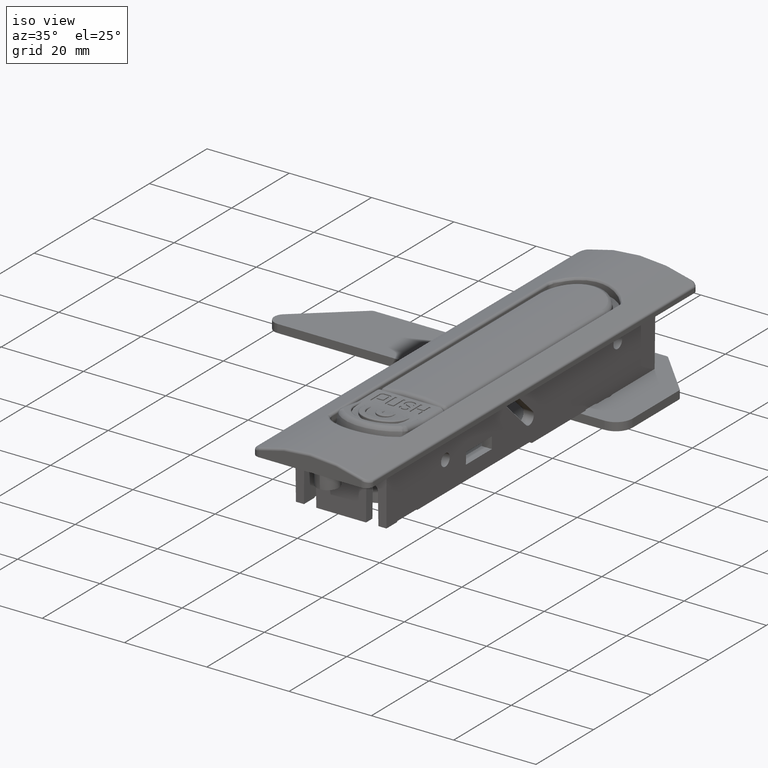
[diagram: clean part render]
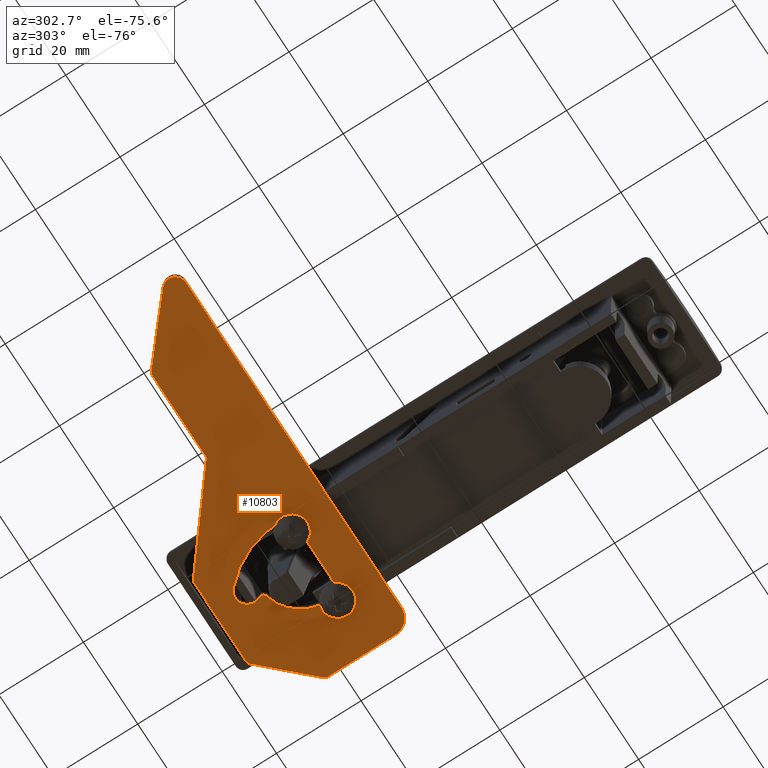
[diagram: tour spotlight — one face highlighted and labeled with its STEP entity id]
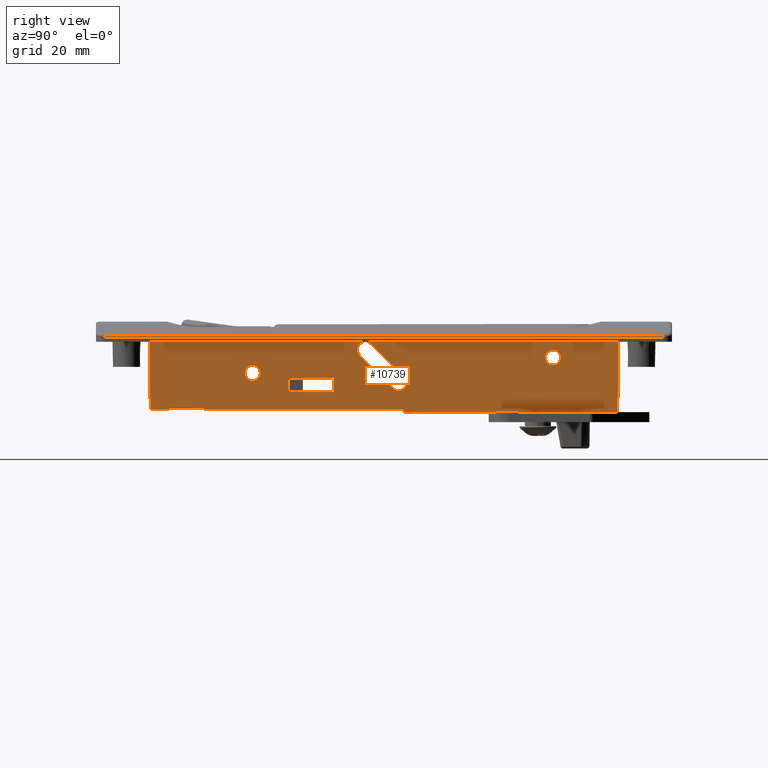
[diagram: tour spotlight — one face highlighted and labeled with its STEP entity id]
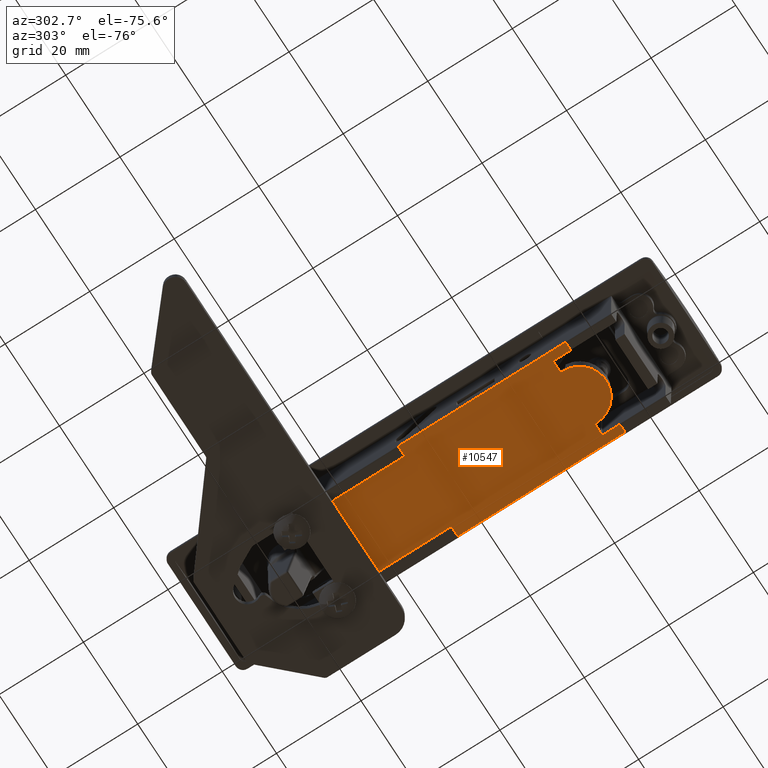
[diagram: tour spotlight — one face highlighted and labeled with its STEP entity id]
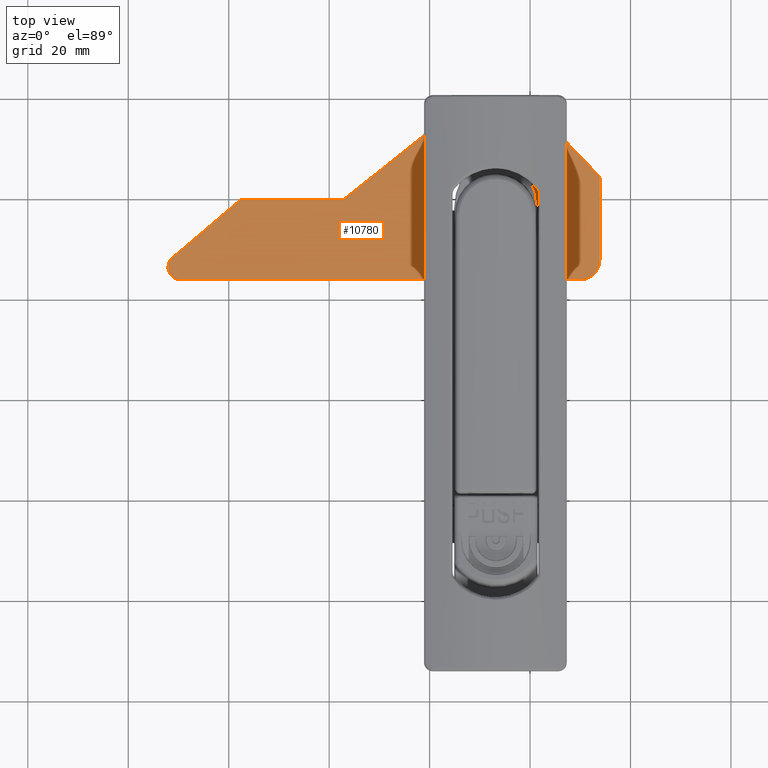
[diagram: tour spotlight — one face highlighted and labeled with its STEP entity id]
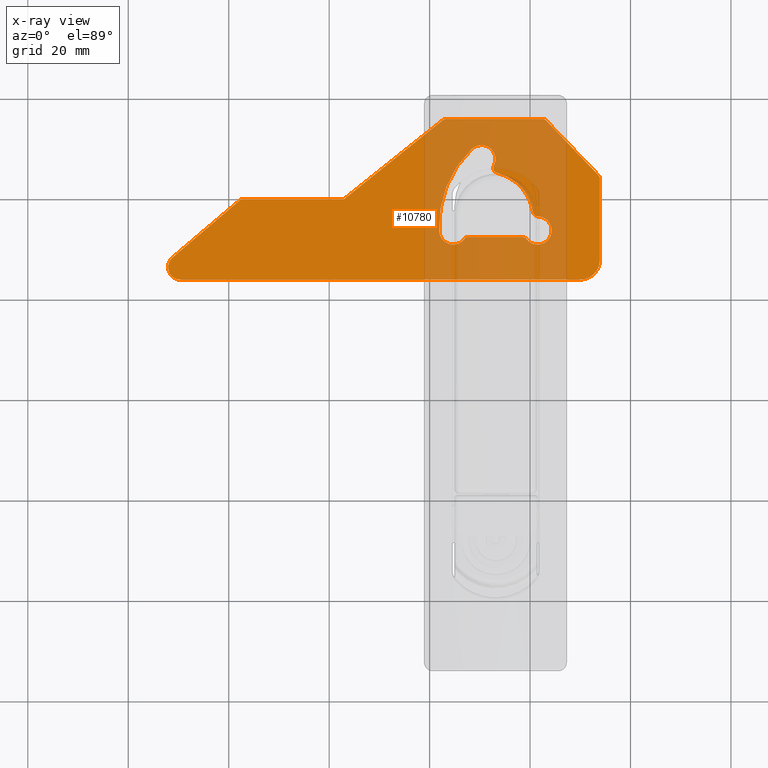
[diagram: x-ray of the same camera — body ghosted, this tour face saturated]
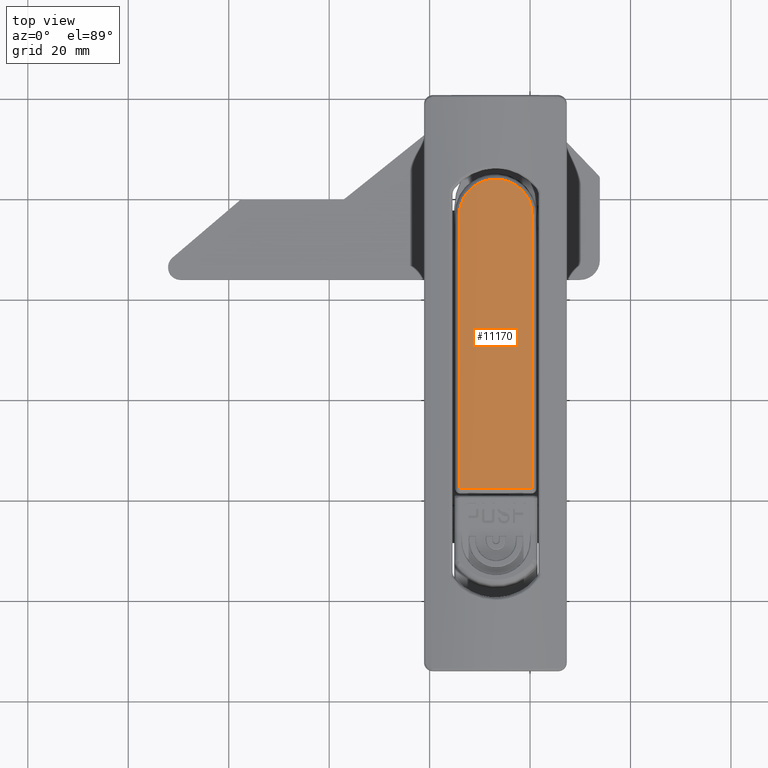
[diagram: tour spotlight — one face highlighted and labeled with its STEP entity id]
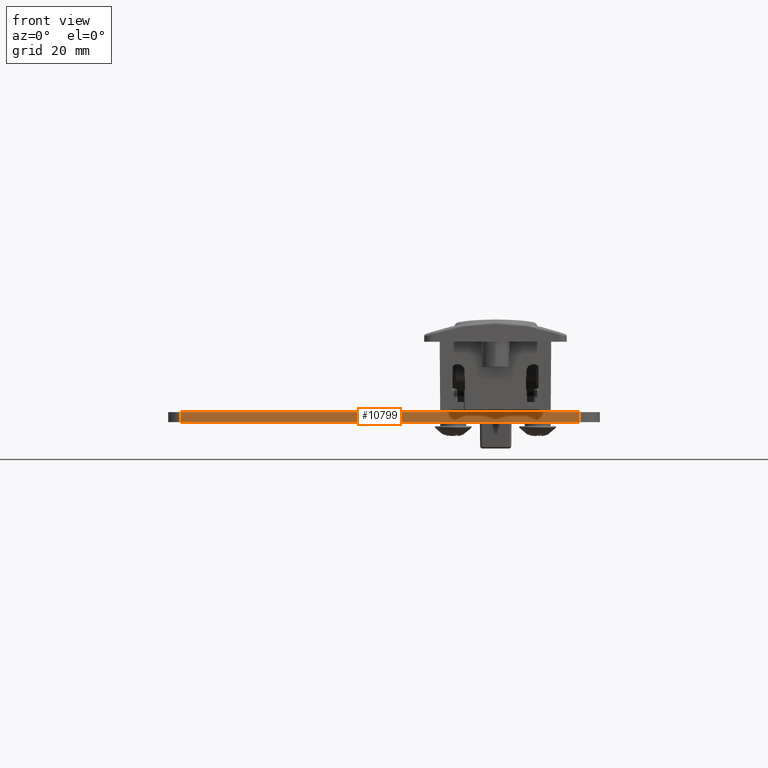
[diagram: tour spotlight — one face highlighted and labeled with its STEP entity id]
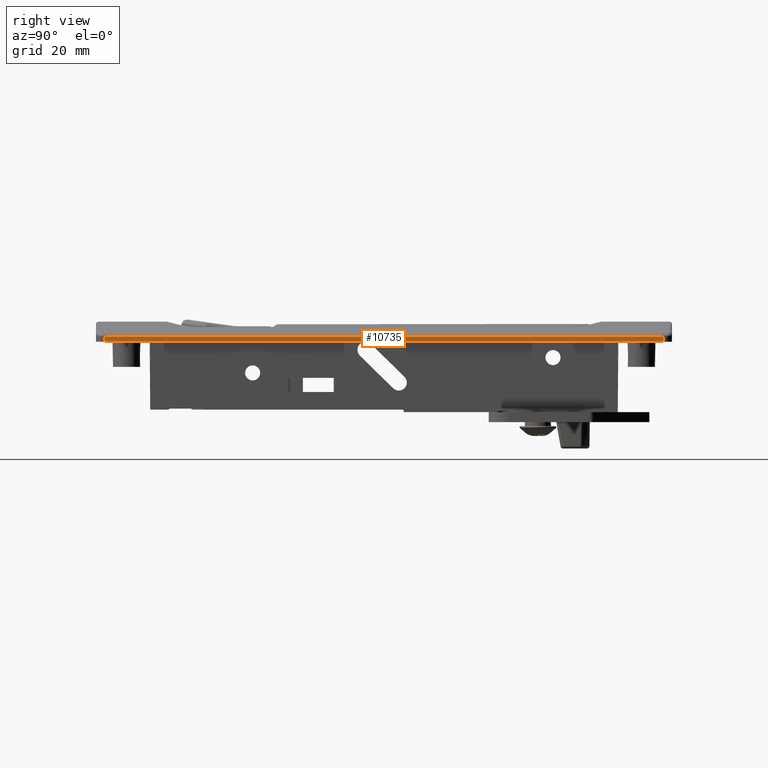
[diagram: tour spotlight — one face highlighted and labeled with its STEP entity id]
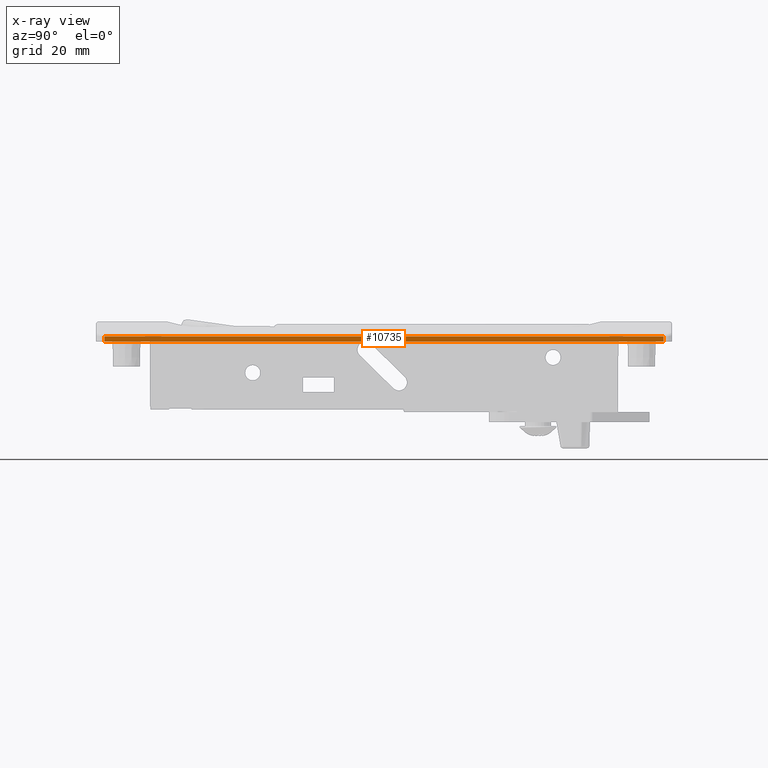
[diagram: x-ray of the same camera — body ghosted, this tour face saturated]
A machine part: a face-by-face anatomy tour. The part has 669 B-rep faces; the first image is the clean iso view, then the 7 largest visible faces are spotlighted one at a time (largest first), each with its STEP entity span.

Face 1 — auxiliary view, entity #10803. In plain terms, the highlighted planar face has unit normal (0, -0, -1).
Definition (entity closure, byte-faithful):
#778=FACE_BOUND('',#1753,.T.);
#1060=FACE_OUTER_BOUND('',#1752,.T.);
#1752=EDGE_LOOP('',(#8367,#8368,#8369,#8370,#8371,#8372,#8373,#8374,#8375,
#8376,#8377,#8378,#8379,#8380));
#1753=EDGE_LOOP('',(#8381,#8382,#8383,#8384,#8385,#8386,#8387,#8388,#8389));
#2326=CIRCLE('',#11624,0.999999999999997);
#2342=CIRCLE('',#11642,9.4173007158522);
#2343=CIRCLE('',#11644,1.);
#2344=CIRCLE('',#11646,1.);
#2345=CIRCLE('',#11649,2.8);
#2346=CIRCLE('',#11651,2.8);
#2347=CIRCLE('',#11653,2.8);
#2348=CIRCLE('',#11655,21.0182550071399);
#2349=CIRCLE('',#11657,1.);
#2350=CIRCLE('',#11660,1.);
#2351=CIRCLE('',#11662,1.);
#2352=CIRCLE('',#11665,1.);
#2353=CIRCLE('',#11668,1.);
#2354=CIRCLE('',#11671,4.);
#2355=CIRCLE('',#11676,2.5);
#3038=LINE('',#17858,#3894);
#3044=LINE('',#17880,#3900);
#3049=LINE('',#17893,#3905);
#3053=LINE('',#17903,#3909);
#3056=LINE('',#17911,#3912);
#3059=LINE('',#17919,#3915);
#3060=LINE('',#17921,#3916);
#3061=LINE('',#17924,#3917);
#3894=VECTOR('',#13661,11.2951839540217);
#3900=VECTOR('',#13689,24.910934831015);
#3905=VECTOR('',#13704,19.7811849518919);
#3909=VECTOR('',#13714,15.0852835425716);
#3912=VECTOR('',#13723,16.0987426851964);
#3915=VECTOR('',#13732,79.5);
#3916=VECTOR('',#13735,19.2219293351775);
#3917=VECTOR('',#13738,17.5205098312484);
#4769=VERTEX_POINT('',#17790);
#4770=VERTEX_POINT('',#17791);
#4794=VERTEX_POINT('',#17843);
#4795=VERTEX_POINT('',#17847);
#4796=VERTEX_POINT('',#17851);
#4797=VERTEX_POINT('',#17853);
#4798=VERTEX_POINT('',#17857);
#4799=VERTEX_POINT('',#17861);
#4800=VERTEX_POINT('',#17867);
#4801=VERTEX_POINT('',#17873);
#4802=VERTEX_POINT('',#17874);
#4803=VERTEX_POINT('',#17879);
#4804=VERTEX_POINT('',#17883);
#4805=VERTEX_POINT('',#17887);
#4806=VERTEX_POINT('',#17888);
#4807=VERTEX_POINT('',#17895);
#4808=VERTEX_POINT('',#17896);
#4809=VERTEX_POINT('',#17901);
#4810=VERTEX_POINT('',#17905);
#4811=VERTEX_POINT('',#17909);
#4812=VERTEX_POINT('',#17913);
#4813=VERTEX_POINT('',#17917);
#4814=VERTEX_POINT('',#17923);
#6013=EDGE_CURVE('',#4769,#4770,#2326,.T.);
#6039=EDGE_CURVE('',#4794,#4770,#2342,.T.);
#6041=EDGE_CURVE('',#4794,#4795,#2343,.T.);
#6044=EDGE_CURVE('',#4796,#4797,#2344,.T.);
#6046=EDGE_CURVE('',#4798,#4797,#3038,.T.);
#6049=EDGE_CURVE('',#4769,#4799,#2345,.T.);
#6050=EDGE_CURVE('',#4796,#4795,#2346,.T.);
#6051=EDGE_CURVE('',#4800,#4798,#2347,.T.);
#6053=EDGE_CURVE('',#4799,#4800,#2348,.T.);
#6054=EDGE_CURVE('',#4801,#4802,#2349,.T.);
#6057=EDGE_CURVE('',#4803,#4802,#3044,.T.);
#6059=EDGE_CURVE('',#4803,#4804,#2350,.T.);
#6061=EDGE_CURVE('',#4805,#4806,#2351,.T.);
#6064=EDGE_CURVE('',#4805,#4804,#3049,.T.);
#6065=EDGE_CURVE('',#4807,#4808,#2352,.T.);
#6069=EDGE_CURVE('',#4807,#4809,#3053,.T.);
#6070=EDGE_CURVE('',#4810,#4809,#2353,.T.);
#6073=EDGE_CURVE('',#4810,#4811,#3056,.T.);
#6075=EDGE_CURVE('',#4812,#4811,#2354,.T.);
#6077=EDGE_CURVE('',#4812,#4813,#3059,.T.);
#6078=EDGE_CURVE('',#4801,#4808,#3060,.T.);
#6079=EDGE_CURVE('',#4814,#4806,#3061,.T.);
#6081=EDGE_CURVE('',#4813,#4814,#2355,.T.);
#8367=ORIENTED_EDGE('',*,*,#6054,.F.);
#8368=ORIENTED_EDGE('',*,*,#6078,.T.);
#8369=ORIENTED_EDGE('',*,*,#6065,.F.);
#8370=ORIENTED_EDGE('',*,*,#6069,.T.);
#8371=ORIENTED_EDGE('',*,*,#6070,.F.);
#8372=ORIENTED_EDGE('',*,*,#6073,.T.);
#8373=ORIENTED_EDGE('',*,*,#6075,.F.);
#8374=ORIENTED_EDGE('',*,*,#6077,.T.);
#8375=ORIENTED_EDGE('',*,*,#6081,.T.);
#8376=ORIENTED_EDGE('',*,*,#6079,.T.);
#8377=ORIENTED_EDGE('',*,*,#6061,.F.);
#8378=ORIENTED_EDGE('',*,*,#6064,.T.);
#8379=ORIENTED_EDGE('',*,*,#6059,.F.);
#8380=ORIENTED_EDGE('',*,*,#6057,.T.);
#8381=ORIENTED_EDGE('',*,*,#6013,.F.);
#8382=ORIENTED_EDGE('',*,*,#6049,.T.);
#8383=ORIENTED_EDGE('',*,*,#6053,.T.);
#8384=ORIENTED_EDGE('',*,*,#6051,.T.);
#8385=ORIENTED_EDGE('',*,*,#6046,.T.);
#8386=ORIENTED_EDGE('',*,*,#6044,.F.);
#8387=ORIENTED_EDGE('',*,*,#6050,.T.);
#8388=ORIENTED_EDGE('',*,*,#6041,.F.);
#8389=ORIENTED_EDGE('',*,*,#6039,.T.);
#10410=PLANE('',#11677);
#10803=ADVANCED_FACE('',(#1060,#778),#10410,.T.);
#11624=AXIS2_PLACEMENT_3D('',#17792,#13599,#13600);
#11642=AXIS2_PLACEMENT_3D('',#17844,#13645,#13646);
#11644=AXIS2_PLACEMENT_3D('',#17848,#13650,#13651);
#11646=AXIS2_PLACEMENT_3D('',#17854,#13656,#13657);
#11649=AXIS2_PLACEMENT_3D('',#17863,#13666,#13667);
#11651=AXIS2_PLACEMENT_3D('',#17865,#13670,#13671);
#11653=AXIS2_PLACEMENT_3D('',#17868,#13674,#13675);
#11655=AXIS2_PLACEMENT_3D('',#17871,#13679,#13680);
#11657=AXIS2_PLACEMENT_3D('',#17875,#13683,#13684);
#11660=AXIS2_PLACEMENT_3D('',#17884,#13693,#13694);
#11662=AXIS2_PLACEMENT_3D('',#17889,#13698,#13699);
#11665=AXIS2_PLACEMENT_3D('',#17897,#13707,#13708);
#11668=AXIS2_PLACEMENT_3D('',#17906,#13717,#13718);
#11671=AXIS2_PLACEMENT_3D('',#17915,#13727,#13728);
#11676=AXIS2_PLACEMENT_3D('',#17927,#13742,#13743);
#11677=AXIS2_PLACEMENT_3D('',#17928,#13744,#13745);
#13599=DIRECTION('center_axis',(0.,0.,-1.));
#13600=DIRECTION('ref_axis',(-0.885954035961788,-0.463773054589224,0.));
#13645=DIRECTION('center_axis',(0.,0.,-1.));
#13646=DIRECTION('ref_axis',(-0.055707512168715,0.998447130842676,0.));
#13650=DIRECTION('center_axis',(0.,0.,-1.));
#13651=DIRECTION('ref_axis',(0.660042506926471,-0.751228253628829,0.));
#13656=DIRECTION('center_axis',(0.,0.,-1.));
#13657=DIRECTION('ref_axis',(-0.444261658319319,0.895897080555221,0.));
#13661=DIRECTION('',(-1.,-1.87535118341112E-16,0.));
#13666=DIRECTION('center_axis',(0.,0.,-1.));
#13667=DIRECTION('ref_axis',(0.69078129890068,0.723063757278077,0.));
#13670=DIRECTION('center_axis',(0.,0.,-1.));
#13671=DIRECTION('ref_axis',(0.301176333759329,0.953568464234891,0.));
#13674=DIRECTION('center_axis',(0.,0.,-1.));
#13675=DIRECTION('ref_axis',(-0.885685483402661,-0.464285714285713,0.));
#13679=DIRECTION('center_axis',(0.,0.,-1.));
#13680=DIRECTION('ref_axis',(0.998409708627447,-0.0563742292049829,0.));
#13683=DIRECTION('center_axis',(0.,0.,-1.));
#13684=DIRECTION('ref_axis',(0.331006941435499,0.943628319160418,0.));
#13689=DIRECTION('',(-0.780868809443031,0.624695047554424,0.));
#13693=DIRECTION('center_axis',(0.,0.,1.));
#13694=DIRECTION('ref_axis',(-0.331006941435495,-0.94362831916042,0.));
#13698=DIRECTION('center_axis',(0.,0.,-1.));
#13699=DIRECTION('ref_axis',(0.345385506554578,0.938460895222618,0.));
#13704=DIRECTION('',(-1.,0.,0.));
#13707=DIRECTION('center_axis',(0.,0.,-1.));
#13708=DIRECTION('ref_axis',(-0.392923245706228,0.919571271290966,0.));
#13714=DIRECTION('',(-0.691222645967364,-0.722641857147699,0.));
#13717=DIRECTION('center_axis',(0.,0.,-1.));
#13718=DIRECTION('ref_axis',(-0.928073773238878,0.372396390189474,0.));
#13723=DIRECTION('',(0.,-1.,0.));
#13727=DIRECTION('center_axis',(0.,0.,-1.));
#13728=DIRECTION('ref_axis',(-0.707106781186548,-0.707106781186547,0.));
#13732=DIRECTION('',(1.,2.3618589976677E-32,0.));
#13735=DIRECTION('',(-1.,2.22044604925031E-16,0.));
#13738=DIRECTION('',(-0.761417703724076,0.648261583356252,0.));
#13742=DIRECTION('center_axis',(0.,0.,1.));
#13743=DIRECTION('ref_axis',(0.,-1.,0.));
#13744=DIRECTION('center_axis',(0.,0.,1.));
#13745=DIRECTION('ref_axis',(1.,0.,0.));
#17790=CARTESIAN_POINT('',(21.119328699307,22.7014354471502,1.));
#17791=CARTESIAN_POINT('',(20.4661272284801,21.2651264068909,1.));
#17792=CARTESIAN_POINT('Origin',(20.2333746633452,22.237662392561,1.));
#17843=CARTESIAN_POINT('',(13.337962882226,13.4562538940419,1.));
#17844=CARTESIAN_POINT('Origin',(22.6580281267413,12.1064625728488,1.));
#17847=CARTESIAN_POINT('',(12.3630682719958,12.5996941474973,1.));
#17848=CARTESIAN_POINT('Origin',(12.3482880777646,13.5995849144606,1.));
#17851=CARTESIAN_POINT('',(14.6333240629122,8.10526315789474,1.));
#17853=CARTESIAN_POINT('',(15.429349508294,8.5,1.));
#17854=CARTESIAN_POINT('Origin',(15.429349508294,7.5,1.));
#17857=CARTESIAN_POINT('',(26.7245334623157,8.5,1.));
#17858=CARTESIAN_POINT('',(32.7641797332937,8.5,1.));
#17861=CARTESIAN_POINT('',(25.5341876369219,26.0245785203786,1.));
#17863=CARTESIAN_POINT('Origin',(23.6,24.,1.));
#17865=CARTESIAN_POINT('Origin',(12.4044528158431,9.8,1.));
#17867=CARTESIAN_POINT('',(32.,9.64215215822605,1.));
#17868=CARTESIAN_POINT('Origin',(29.2044528158431,9.8,1.));
#17871=CARTESIAN_POINT('Origin',(11.0151701424641,10.8270400834873,1.));
#17873=CARTESIAN_POINT('',(30.6492189406418,32.,1.));
#17874=CARTESIAN_POINT('',(31.2739139881962,31.780868809443,1.));
#17875=CARTESIAN_POINT('Origin',(30.6492189406418,31.,1.));
#17879=CARTESIAN_POINT('',(50.7260860118038,16.219131190557,1.));
#17880=CARTESIAN_POINT('',(51.,16.,1.));
#17883=CARTESIAN_POINT('',(51.3507810593582,16.,1.));
#17884=CARTESIAN_POINT('Origin',(51.3507810593582,17.,1.));
#17887=CARTESIAN_POINT('',(71.1319660112501,16.,1.));
#17888=CARTESIAN_POINT('',(71.7802275946064,15.7614177037241,1.));
#17889=CARTESIAN_POINT('Origin',(71.1319660112501,15.,1.));
#17893=CARTESIAN_POINT('',(71.5,16.,1.));
#17895=CARTESIAN_POINT('',(10.7046477483166,31.6912226459674,1.));
#17896=CARTESIAN_POINT('',(11.4272896054643,32.,1.));
#17897=CARTESIAN_POINT('Origin',(11.4272896054643,31.,1.));
#17901=CARTESIAN_POINT('',(0.277358142852298,20.7899653311638,1.));
#17903=CARTESIAN_POINT('',(11.,32.,1.));
#17905=CARTESIAN_POINT('',(0.,20.0987426851964,1.));
#17906=CARTESIAN_POINT('Origin',(1.,20.0987426851964,1.));
#17909=CARTESIAN_POINT('',(0.,4.,1.));
#17911=CARTESIAN_POINT('',(0.,20.5,1.));
#17913=CARTESIAN_POINT('',(4.,9.4474359906708E-32,1.));
#17915=CARTESIAN_POINT('Origin',(4.,4.,1.));
#17917=CARTESIAN_POINT('',(83.5,1.97215226305253E-30,1.));
#17919=CARTESIAN_POINT('',(0.,0.,1.));
#17921=CARTESIAN_POINT('',(31.,32.,1.));
#17923=CARTESIAN_POINT('',(85.1206539583906,4.40354425931019,1.));
#17924=CARTESIAN_POINT('',(85.1206539583906,4.40354425931019,1.));
#17927=CARTESIAN_POINT('Origin',(83.5,2.5,1.));
#17928=CARTESIAN_POINT('Origin',(38.8038260042717,11.5186376141834,1.));

Face 2 — right view, entity #10739. In plain terms, the highlighted planar face has unit normal (1, 0, -0.0071).
Definition (entity closure, byte-faithful):
#423=ELLIPSE('',#11512,1.50003826481806,1.5);
#424=ELLIPSE('',#11515,0.20000510197574,0.199999999999999);
#425=ELLIPSE('',#11519,0.20000510197574,0.199999999999999);
#426=ELLIPSE('',#11523,0.200005101975738,0.199999999999997);
#427=ELLIPSE('',#11527,1.50003826481806,1.5);
#428=ELLIPSE('',#11531,1.60004081580089,1.59999999999496);
#429=ELLIPSE('',#11535,1.60004081580508,1.59999999999915);
#430=ELLIPSE('',#11553,0.200005101975737,0.199999999999996);
#432=ELLIPSE('',#11562,350.008928457546,2.5);
#434=ELLIPSE('',#11566,350.008928457546,2.5);
#769=FACE_BOUND('',#1680,.T.);
#770=FACE_BOUND('',#1681,.T.);
#771=FACE_BOUND('',#1682,.T.);
#772=FACE_BOUND('',#1683,.T.);
#996=FACE_OUTER_BOUND('',#1679,.T.);
#1679=EDGE_LOOP('',(#8011,#8012,#8013,#8014,#8015,#8016,#8017,#8018,#8019,
#8020,#8021,#8022,#8023,#8024,#8025,#8026,#8027,#8028,#8029,#8030,#8031));
#1680=EDGE_LOOP('',(#8032));
#1681=EDGE_LOOP('',(#8033,#8034,#8035,#8036));
#1682=EDGE_LOOP('',(#8037,#8038,#8039,#8040));
#1683=EDGE_LOOP('',(#8041));
#2656=LINE('',#15614,#3512);
#2671=LINE('',#15671,#3527);
#2672=LINE('',#15674,#3528);
#2673=LINE('',#15682,#3529);
#2702=LINE('',#15828,#3558);
#2711=LINE('',#15851,#3567);
#2738=LINE('',#16020,#3594);
#2924=LINE('',#17355,#3780);
#2931=LINE('',#17453,#3787);
#2935=LINE('',#17465,#3791);
#2939=LINE('',#17477,#3795);
#2943=LINE('',#17491,#3799);
#2947=LINE('',#17503,#3803);
#2951=LINE('',#17515,#3807);
#2954=LINE('',#17521,#3810);
#2957=LINE('',#17527,#3813);
#2959=LINE('',#17530,#3815);
#2976=LINE('',#17576,#3832);
#2979=LINE('',#17591,#3835);
#2982=LINE('',#17596,#3838);
#2985=LINE('',#17600,#3841);
#3512=VECTOR('',#12395,39.594114768528);
#3527=VECTOR('',#12444,15.8962962957966);
#3528=VECTOR('',#12447,4.07877710401718);
#3529=VECTOR('',#12454,18.478777103522);
#3558=VECTOR('',#12549,14.0007412110832);
#3567=VECTOR('',#12564,13.5007147392075);
#3594=VECTOR('',#12617,67.8000000003736);
#3780=VECTOR('',#13235,4.14051311294263);
#3787=VECTOR('',#13292,0.0633476567013537);
#3791=VECTOR('',#13304,6.507461438189);
#3795=VECTOR('',#13316,0.0633476568084421);
#3799=VECTOR('',#13328,9.30011621326186);
#3803=VECTOR('',#13340,9.30011621329525);
#3807=VECTOR('',#13352,2.80007142764877);
#3810=VECTOR('',#13357,9.);
#3813=VECTOR('',#13362,2.80007142764877);
#3815=VECTOR('',#13366,9.);
#3832=VECTOR('',#13423,0.509914458612364);
#3835=VECTOR('',#13448,9.34999999962711);
#3838=VECTOR('',#13453,16.149999999988);
#3841=VECTOR('',#13458,3.59411476860998);
#4371=VERTEX_POINT('',#15611);
#4372=VERTEX_POINT('',#15613);
#4395=VERTEX_POINT('',#15667);
#4397=VERTEX_POINT('',#15670);
#4398=VERTEX_POINT('',#15673);
#4401=VERTEX_POINT('',#15679);
#4402=VERTEX_POINT('',#15681);
#4458=VERTEX_POINT('',#15826);
#4468=VERTEX_POINT('',#15848);
#4469=VERTEX_POINT('',#15850);
#4509=VERTEX_POINT('',#16017);
#4510=VERTEX_POINT('',#16019);
#4702=VERTEX_POINT('',#17352);
#4703=VERTEX_POINT('',#17354);
#4717=VERTEX_POINT('',#17437);
#4720=VERTEX_POINT('',#17443);
#4721=VERTEX_POINT('',#17445);
#4723=VERTEX_POINT('',#17451);
#4725=VERTEX_POINT('',#17457);
#4727=VERTEX_POINT('',#17463);
#4729=VERTEX_POINT('',#17469);
#4731=VERTEX_POINT('',#17475);
#4733=VERTEX_POINT('',#17481);
#4734=VERTEX_POINT('',#17484);
#4737=VERTEX_POINT('',#17489);
#4739=VERTEX_POINT('',#17495);
#4741=VERTEX_POINT('',#17501);
#4742=VERTEX_POINT('',#17508);
#4745=VERTEX_POINT('',#17513);
#4747=VERTEX_POINT('',#17519);
#4749=VERTEX_POINT('',#17525);
#5409=EDGE_CURVE('',#4372,#4371,#2656,.T.);
#5434=EDGE_CURVE('',#4397,#4395,#2671,.T.);
#5436=EDGE_CURVE('',#4398,#4397,#2672,.T.);
#5440=EDGE_CURVE('',#4402,#4401,#2673,.T.);
#5500=EDGE_CURVE('',#4395,#4458,#2702,.T.);
#5511=EDGE_CURVE('',#4469,#4468,#2711,.T.);
#5555=EDGE_CURVE('',#4510,#4509,#2738,.T.);
#5864=EDGE_CURVE('',#4703,#4702,#2924,.T.);
#5882=EDGE_CURVE('',#4717,#4717,#423,.T.);
#5885=EDGE_CURVE('',#4721,#4720,#424,.T.);
#5889=EDGE_CURVE('',#4720,#4723,#2931,.T.);
#5892=EDGE_CURVE('',#4723,#4725,#425,.T.);
#5895=EDGE_CURVE('',#4725,#4727,#2935,.T.);
#5898=EDGE_CURVE('',#4727,#4729,#426,.T.);
#5901=EDGE_CURVE('',#4729,#4731,#2939,.T.);
#5903=EDGE_CURVE('',#4733,#4733,#427,.T.);
#5907=EDGE_CURVE('',#4734,#4737,#2943,.T.);
#5910=EDGE_CURVE('',#4737,#4739,#428,.T.);
#5913=EDGE_CURVE('',#4739,#4741,#2947,.T.);
#5915=EDGE_CURVE('',#4741,#4734,#429,.T.);
#5919=EDGE_CURVE('',#4742,#4745,#2951,.T.);
#5922=EDGE_CURVE('',#4745,#4747,#2954,.T.);
#5925=EDGE_CURVE('',#4747,#4749,#2957,.T.);
#5927=EDGE_CURVE('',#4749,#4742,#2959,.T.);
#5944=EDGE_CURVE('',#4731,#4372,#430,.T.);
#5951=EDGE_CURVE('',#4371,#4402,#2976,.T.);
#5953=EDGE_CURVE('',#4401,#4703,#432,.T.);
#5955=EDGE_CURVE('',#4702,#4398,#434,.T.);
#5958=EDGE_CURVE('',#4458,#4510,#2979,.T.);
#5961=EDGE_CURVE('',#4509,#4469,#2982,.T.);
#5964=EDGE_CURVE('',#4468,#4721,#2985,.T.);
#8011=ORIENTED_EDGE('',*,*,#5864,.T.);
#8012=ORIENTED_EDGE('',*,*,#5955,.T.);
#8013=ORIENTED_EDGE('',*,*,#5436,.T.);
#8014=ORIENTED_EDGE('',*,*,#5434,.T.);
#8015=ORIENTED_EDGE('',*,*,#5500,.T.);
#8016=ORIENTED_EDGE('',*,*,#5958,.T.);
#8017=ORIENTED_EDGE('',*,*,#5555,.T.);
#8018=ORIENTED_EDGE('',*,*,#5961,.T.);
#8019=ORIENTED_EDGE('',*,*,#5511,.T.);
#8020=ORIENTED_EDGE('',*,*,#5964,.T.);
#8021=ORIENTED_EDGE('',*,*,#5885,.T.);
#8022=ORIENTED_EDGE('',*,*,#5889,.T.);
#8023=ORIENTED_EDGE('',*,*,#5892,.T.);
#8024=ORIENTED_EDGE('',*,*,#5895,.T.);
#8025=ORIENTED_EDGE('',*,*,#5898,.T.);
#8026=ORIENTED_EDGE('',*,*,#5901,.T.);
#8027=ORIENTED_EDGE('',*,*,#5944,.T.);
#8028=ORIENTED_EDGE('',*,*,#5409,.T.);
#8029=ORIENTED_EDGE('',*,*,#5951,.T.);
#8030=ORIENTED_EDGE('',*,*,#5440,.T.);
#8031=ORIENTED_EDGE('',*,*,#5953,.T.);
#8032=ORIENTED_EDGE('',*,*,#5882,.F.);
#8033=ORIENTED_EDGE('',*,*,#5922,.T.);
#8034=ORIENTED_EDGE('',*,*,#5925,.T.);
#8035=ORIENTED_EDGE('',*,*,#5927,.T.);
#8036=ORIENTED_EDGE('',*,*,#5919,.T.);
#8037=ORIENTED_EDGE('',*,*,#5910,.T.);
#8038=ORIENTED_EDGE('',*,*,#5913,.T.);
#8039=ORIENTED_EDGE('',*,*,#5915,.T.);
#8040=ORIENTED_EDGE('',*,*,#5907,.T.);
#8041=ORIENTED_EDGE('',*,*,#5903,.F.);
#10382=PLANE('',#11581);
#10739=ADVANCED_FACE('',(#996,#769,#770,#771,#772),#10382,.T.);
#11512=AXIS2_PLACEMENT_3D('',#17438,#13278,#13279);
#11515=AXIS2_PLACEMENT_3D('',#17446,#13285,#13286);
#11519=AXIS2_PLACEMENT_3D('',#17459,#13298,#13299);
#11523=AXIS2_PLACEMENT_3D('',#17471,#13310,#13311);
#11527=AXIS2_PLACEMENT_3D('',#17482,#13321,#13322);
#11531=AXIS2_PLACEMENT_3D('',#17497,#13334,#13335);
#11535=AXIS2_PLACEMENT_3D('',#17506,#13345,#13346);
#11553=AXIS2_PLACEMENT_3D('',#17563,#13403,#13404);
#11562=AXIS2_PLACEMENT_3D('',#17579,#13428,#13429);
#11566=AXIS2_PLACEMENT_3D('',#17583,#13436,#13437);
#11581=AXIS2_PLACEMENT_3D('',#17623,#13485,#13486);
#12395=DIRECTION('',(-1.,3.42438620847252E-15,7.33149516060258E-13));
#12444=DIRECTION('',(-1.,-1.81239604910076E-15,0.));
#12447=DIRECTION('',(-1.,-1.81239604910076E-15,0.));
#12454=DIRECTION('',(-1.,-1.81239604910076E-15,0.));
#12549=DIRECTION('',(-0.00740701525290121,0.00714247899398618,0.999947059158065));
#12564=DIRECTION('',(-0.00740701525345462,-0.00714247899398617,-0.999947059158061));
#12617=DIRECTION('',(1.,0.,-2.53735446874106E-13));
#13235=DIRECTION('',(-1.,3.42438620847252E-15,7.33149516060258E-13));
#13278=DIRECTION('center_axis',(-1.81234981627677E-15,0.999974490772033,
-0.00714267493408596));
#13279=DIRECTION('ref_axis',(-2.53728974278748E-13,-0.00714267493408596,
-0.999974490772033));
#13285=DIRECTION('center_axis',(-1.81234981627677E-15,0.999974490772033,
-0.00714267493408596));
#13286=DIRECTION('ref_axis',(-2.53728974278748E-13,-0.00714267493408596,
-0.999974490772033));
#13292=DIRECTION('',(-0.623769735316881,0.00558277301967196,0.781588222754232));
#13298=DIRECTION('center_axis',(1.81234981627677E-15,-0.999974490772033,
0.00714267493408596));
#13299=DIRECTION('ref_axis',(-2.53728974278748E-13,-0.00714267493408596,
-0.999974490772033));
#13304=DIRECTION('',(-1.,3.01346572970543E-14,4.4725874684617E-12));
#13310=DIRECTION('center_axis',(1.81234981627677E-15,-0.999974490772033,
0.00714267493408596));
#13311=DIRECTION('ref_axis',(-2.53728974278748E-13,-0.00714267493408596,
-0.999974490772033));
#13316=DIRECTION('',(-0.623769735206252,-0.00558277302030484,-0.781588222842519));
#13321=DIRECTION('center_axis',(-1.81234981627677E-15,0.999974490772033,
-0.00714267493408596));
#13322=DIRECTION('ref_axis',(-2.53728974278748E-13,-0.00714267493408596,
-0.999974490772033));
#13328=DIRECTION('',(-0.714240136486619,-0.00499916337795202,-0.699882872913102));
#13334=DIRECTION('center_axis',(1.81234981627677E-15,-0.999974490772033,
0.00714267493408596));
#13335=DIRECTION('ref_axis',(2.53728974278748E-13,0.00714267493408596,0.999974490772033));
#13340=DIRECTION('',(0.714240136491249,0.00499916337791827,0.699882872908377));
#13345=DIRECTION('center_axis',(1.81234981627677E-15,-0.999974490772033,
0.00714267493408596));
#13346=DIRECTION('ref_axis',(2.53728974278748E-13,0.00714267493408596,0.999974490772033));
#13352=DIRECTION('',(6.84227765783602E-49,-0.00714267493408595,-0.999974490772033));
#13357=DIRECTION('',(1.,1.81239604910076E-15,0.));
#13362=DIRECTION('',(-6.84227765783602E-49,0.00714267493408595,0.999974490772033));
#13366=DIRECTION('',(-1.,-1.81239604910076E-15,0.));
#13403=DIRECTION('center_axis',(-1.81234981627677E-15,0.999974490772033,
-0.00714267493408596));
#13404=DIRECTION('ref_axis',(-2.53728974278748E-13,-0.00714267493408596,
-0.999974490772033));
#13423=DIRECTION('',(-0.196111324774182,-0.00700397588479259,-0.980556623870912));
#13428=DIRECTION('center_axis',(1.81234981627677E-15,-0.999974490772033,
0.00714267493408596));
#13429=DIRECTION('ref_axis',(-1.29453558305484E-17,0.00714267493408596,
0.999974490772033));
#13436=DIRECTION('center_axis',(1.81234981627677E-15,-0.999974490772033,
0.00714267493408596));
#13437=DIRECTION('ref_axis',(-1.29453558305484E-17,0.00714267493408596,
0.999974490772033));
#13448=DIRECTION('',(1.,0.,-2.53735446874106E-13));
#13453=DIRECTION('',(1.,0.,-2.53735446874106E-13));
#13458=DIRECTION('',(-1.,-1.81239604910076E-15,0.));
#13485=DIRECTION('center_axis',(-1.81234981627677E-15,0.999974490772033,
-0.00714267493408595));
#13486=DIRECTION('ref_axis',(0.,-0.00714267493408727,-0.999974490772033));
#15611=CARTESIAN_POINT('',(93.095874386733,64.1086953184069,-17.4999999999826));
#15613=CARTESIAN_POINT('',(132.689989155261,64.1086953184069,-17.5));
#15614=CARTESIAN_POINT('',(132.689989155261,64.1086953184068,-17.5000000000117));
#15667=CARTESIAN_POINT('',(50.3995780904527,64.1051238898354,-17.9999999999825));
#15670=CARTESIAN_POINT('',(66.2958743862493,64.1051238894107,-17.9999999999825));
#15671=CARTESIAN_POINT('',(92.9958743867331,64.1051238898355,-17.9999999999825));
#15673=CARTESIAN_POINT('',(70.3746514902665,64.1051237235727,-17.9999999998898));
#15674=CARTESIAN_POINT('',(92.9958743867331,64.1051238898355,-17.9999999999825));
#15679=CARTESIAN_POINT('',(74.517097283211,64.1051238970897,-17.9999999999958));
#15681=CARTESIAN_POINT('',(92.995874386733,64.1051238898355,-17.9999999999825));
#15682=CARTESIAN_POINT('',(92.9958743867331,64.1051238898355,-17.9999999999825));
#15826=CARTESIAN_POINT('',(50.2958743867503,64.2051238898358,-3.99999999992673));
#15828=CARTESIAN_POINT('',(50.3966577647657,64.1079399181765,-17.6057560322271));
#15848=CARTESIAN_POINT('',(143.495874386733,64.1086953184072,-17.4999999999534));
#15850=CARTESIAN_POINT('',(143.595874386739,64.2051238898358,-3.99999999995096));
#15851=CARTESIAN_POINT('',(143.598789421981,64.2079348166763,-3.60647024228452));
#16017=CARTESIAN_POINT('',(127.445874386751,64.2051238898358,-3.99999999994868));
#16019=CARTESIAN_POINT('',(59.6458743863774,64.2051238898358,-3.99999999992943));
#16020=CARTESIAN_POINT('',(96.9458743866602,64.2051238898358,-3.99999999993889));
#17352=CARTESIAN_POINT('',(70.3756178302676,64.1065524709321,-17.7999999999837));
#17354=CARTESIAN_POINT('',(74.5161309432102,64.1065522926462,-17.7999999998757));
#17355=CARTESIAN_POINT('',(96.94587438665,64.1065524612641,-17.7999999999854));
#17437=CARTESIAN_POINT('',(63.2958743867502,64.1719096041212,-8.64999999997673));
#17438=CARTESIAN_POINT('Origin',(63.2958743867505,64.1826238898355,-7.14999999997673));
#17443=CARTESIAN_POINT('',(139.74543953751,64.1092327763271,-17.4247558911733));
#17445=CARTESIAN_POINT('',(139.901759618123,64.1086953184072,-17.4999999999534));
#17446=CARTESIAN_POINT('Origin',(139.901759618123,64.1101238898359,-17.2999999999418));
#17451=CARTESIAN_POINT('',(139.705925186442,64.1095864319157,-17.375244108768));
#17453=CARTESIAN_POINT('',(139.553227306484,64.1109530862372,-17.1839125037574));
#17457=CARTESIAN_POINT('',(139.549605105816,64.1101238898356,-17.2999999999825));
#17459=CARTESIAN_POINT('Origin',(139.549605105816,64.108695318407,-17.4999999999825));
#17463=CARTESIAN_POINT('',(133.042143667627,64.1101238898359,-17.2999999999418));
#17465=CARTESIAN_POINT('',(139.549605105814,64.1101238898357,-17.2999999999709));
#17469=CARTESIAN_POINT('',(132.885823587005,64.1095864319159,-17.3752441087323));
#17471=CARTESIAN_POINT('Origin',(133.042143667627,64.1086953184072,-17.4999999999534));
#17475=CARTESIAN_POINT('',(132.846309235892,64.1092327763266,-17.4247558912387));
#17477=CARTESIAN_POINT('',(133.078034586443,64.111306730804,-17.1344022644075));
#17481=CARTESIAN_POINT('',(123.095874386768,64.1501238898353,-11.7000000000233));
#17482=CARTESIAN_POINT('Origin',(123.095874386768,64.1608381755495,-10.2000000000233));
#17484=CARTESIAN_POINT('',(99.5155565128884,64.2017609503099,-4.47081153357333));
#17489=CARTESIAN_POINT('',(92.8730402394006,64.1552681499257,-10.9798035873508));
#17491=CARTESIAN_POINT('',(98.4400248801352,64.1942330082694,-5.52472341923502));
#17495=CARTESIAN_POINT('',(95.1126934191427,64.1389424570877,-13.2654005846824));
#17497=CARTESIAN_POINT('Origin',(93.9928668292862,64.1471053035066,-12.1226020860311));
#17501=CARTESIAN_POINT('',(101.755209692711,64.1854352574715,-6.75640853093938));
#17503=CARTESIAN_POINT('',(100.679736352481,64.1779077234368,-7.81026329580084));
#17506=CARTESIAN_POINT('Origin',(100.635383102797,64.1935981038909,-5.61361003222993));
#17508=CARTESIAN_POINT('',(106.945874386745,64.1536953184067,-11.2000000000233));
#17513=CARTESIAN_POINT('',(106.945874386745,64.1336953184068,-14.0000000000117));
#17515=CARTESIAN_POINT('',(106.945874386745,64.2051238898358,-3.99999999993889));
#17519=CARTESIAN_POINT('',(115.945874386745,64.1336953184068,-14.0000000000117));
#17521=CARTESIAN_POINT('',(96.9458743866602,64.1336953184067,-14.0000000000117));
#17525=CARTESIAN_POINT('',(115.945874386745,64.1536953184067,-11.2000000000233));
#17527=CARTESIAN_POINT('',(115.945874386745,64.2051238898358,-3.99999999993889));
#17530=CARTESIAN_POINT('',(96.9458743866602,64.1536953184066,-11.2000000000233));
#17563=CARTESIAN_POINT('Origin',(132.689989155261,64.1101238898354,-17.3));
#17576=CARTESIAN_POINT('',(92.980765237849,64.1045842773754,-18.0755457444025));
#17579=CARTESIAN_POINT('Origin',(72.4458743867388,62.7051111352044,-214.00178564833));
#17583=CARTESIAN_POINT('Origin',(72.4458743867388,62.7051111352044,-214.00178564833));
#17591=CARTESIAN_POINT('',(96.9458743866602,64.2051238898358,-3.99999999993889));
#17596=CARTESIAN_POINT('',(96.9458743866602,64.2051238898358,-3.99999999993889));
#17600=CARTESIAN_POINT('',(143.495874386733,64.1086953184072,-17.4999999999534));
#17623=CARTESIAN_POINT('Origin',(96.9458743866602,64.2051238898358,-3.99999999993889));

Face 3 — auxiliary view, entity #10547. In plain terms, the highlighted planar face has unit normal (0, -0, 1).
Definition (entity closure, byte-faithful):
#804=FACE_OUTER_BOUND('',#1451,.T.);
#1451=EDGE_LOOP('',(#7028,#7029,#7030,#7031,#7032,#7033,#7034,#7035,#7036,
#7037,#7038,#7039,#7040,#7041,#7042,#7043,#7044,#7045,#7046,#7047,#7048,
#7049,#7050,#7051,#7052,#7053));
#2169=CIRCLE('',#11203,0.899999999996716);
#2170=CIRCLE('',#11204,2.70000000000301);
#2171=CIRCLE('',#11205,0.899999999997475);
#2172=CIRCLE('',#11206,6.29999999998259);
#2173=CIRCLE('',#11207,0.899999999997477);
#2174=CIRCLE('',#11208,2.70000000000301);
#2175=CIRCLE('',#11209,0.899999999996715);
#2651=LINE('',#15598,#3507);
#2652=LINE('',#15600,#3508);
#2653=LINE('',#15602,#3509);
#2654=LINE('',#15610,#3510);
#2655=LINE('',#15612,#3511);
#2656=LINE('',#15614,#3512);
#2657=LINE('',#15616,#3513);
#2658=LINE('',#15618,#3514);
#2659=LINE('',#15620,#3515);
#2660=LINE('',#15622,#3516);
#2661=LINE('',#15626,#3517);
#2662=LINE('',#15628,#3518);
#2663=LINE('',#15630,#3519);
#2664=LINE('',#15632,#3520);
#2665=LINE('',#15634,#3521);
#2666=LINE('',#15636,#3522);
#2667=LINE('',#15638,#3523);
#2668=LINE('',#15646,#3524);
#2669=LINE('',#15647,#3525);
#3507=VECTOR('',#12384,10.5);
#3508=VECTOR('',#12385,5.45000000080011);
#3509=VECTOR('',#12386,0.775201728363903);
#3510=VECTOR('',#12393,17.3190823729679);
#3511=VECTOR('',#12394,2.4035714282217);
#3512=VECTOR('',#12395,39.594114768528);
#3513=VECTOR('',#12396,1.9535714285827);
#3514=VECTOR('',#12397,4.144114768051);
#3515=VECTOR('',#12398,2.75000000004081);
#3516=VECTOR('',#12399,0.449999999400994);
#3517=VECTOR('',#12402,0.449999999400994);
#3518=VECTOR('',#12403,2.7500000000116);
#3519=VECTOR('',#12404,4.144114768051);
#3520=VECTOR('',#12405,1.95357142858269);
#3521=VECTOR('',#12406,39.594114768528);
#3522=VECTOR('',#12407,2.40357142892049);
#3523=VECTOR('',#12408,17.3190823729679);
#3524=VECTOR('',#12415,0.775201727665106);
#3525=VECTOR('',#12416,5.45000000080011);
#4363=VERTEX_POINT('',#15596);
#4364=VERTEX_POINT('',#15597);
#4365=VERTEX_POINT('',#15599);
#4366=VERTEX_POINT('',#15601);
#4367=VERTEX_POINT('',#15603);
#4368=VERTEX_POINT('',#15605);
#4369=VERTEX_POINT('',#15607);
#4370=VERTEX_POINT('',#15609);
#4371=VERTEX_POINT('',#15611);
#4372=VERTEX_POINT('',#15613);
#4373=VERTEX_POINT('',#15615);
#4374=VERTEX_POINT('',#15617);
#4375=VERTEX_POINT('',#15619);
#4376=VERTEX_POINT('',#15621);
#4377=VERTEX_POINT('',#15623);
#4378=VERTEX_POINT('',#15625);
#4379=VERTEX_POINT('',#15627);
#4380=VERTEX_POINT('',#15629);
#4381=VERTEX_POINT('',#15631);
#4382=VERTEX_POINT('',#15633);
#4383=VERTEX_POINT('',#15635);
#4384=VERTEX_POINT('',#15637);
#4385=VERTEX_POINT('',#15639);
#4386=VERTEX_POINT('',#15641);
#4387=VERTEX_POINT('',#15643);
#4388=VERTEX_POINT('',#15645);
#5401=EDGE_CURVE('',#4363,#4364,#2651,.T.);
#5402=EDGE_CURVE('',#4365,#4363,#2652,.T.);
#5403=EDGE_CURVE('',#4365,#4366,#2653,.T.);
#5404=EDGE_CURVE('',#4366,#4367,#2169,.T.);
#5405=EDGE_CURVE('',#4367,#4368,#2170,.T.);
#5406=EDGE_CURVE('',#4368,#4369,#2171,.T.);
#5407=EDGE_CURVE('',#4369,#4370,#2654,.T.);
#5408=EDGE_CURVE('',#4371,#4370,#2655,.T.);
#5409=EDGE_CURVE('',#4372,#4371,#2656,.T.);
#5410=EDGE_CURVE('',#4372,#4373,#2657,.T.);
#5411=EDGE_CURVE('',#4374,#4373,#2658,.T.);
#5412=EDGE_CURVE('',#4375,#4374,#2659,.T.);
#5413=EDGE_CURVE('',#4376,#4375,#2660,.T.);
#5414=EDGE_CURVE('',#4377,#4376,#2172,.T.);
#5415=EDGE_CURVE('',#4378,#4377,#2661,.T.);
#5416=EDGE_CURVE('',#4379,#4378,#2662,.T.);
#5417=EDGE_CURVE('',#4380,#4379,#2663,.T.);
#5418=EDGE_CURVE('',#4380,#4381,#2664,.T.);
#5419=EDGE_CURVE('',#4381,#4382,#2665,.T.);
#5420=EDGE_CURVE('',#4383,#4382,#2666,.T.);
#5421=EDGE_CURVE('',#4383,#4384,#2667,.T.);
#5422=EDGE_CURVE('',#4384,#4385,#2173,.T.);
#5423=EDGE_CURVE('',#4385,#4386,#2174,.T.);
#5424=EDGE_CURVE('',#4386,#4387,#2175,.T.);
#5425=EDGE_CURVE('',#4387,#4388,#2668,.T.);
#5426=EDGE_CURVE('',#4364,#4388,#2669,.T.);
#7028=ORIENTED_EDGE('',*,*,#5401,.F.);
#7029=ORIENTED_EDGE('',*,*,#5402,.F.);
#7030=ORIENTED_EDGE('',*,*,#5403,.T.);
#7031=ORIENTED_EDGE('',*,*,#5404,.T.);
#7032=ORIENTED_EDGE('',*,*,#5405,.T.);
#7033=ORIENTED_EDGE('',*,*,#5406,.T.);
#7034=ORIENTED_EDGE('',*,*,#5407,.T.);
#7035=ORIENTED_EDGE('',*,*,#5408,.F.);
#7036=ORIENTED_EDGE('',*,*,#5409,.F.);
#7037=ORIENTED_EDGE('',*,*,#5410,.T.);
#7038=ORIENTED_EDGE('',*,*,#5411,.F.);
#7039=ORIENTED_EDGE('',*,*,#5412,.F.);
#7040=ORIENTED_EDGE('',*,*,#5413,.F.);
#7041=ORIENTED_EDGE('',*,*,#5414,.F.);
#7042=ORIENTED_EDGE('',*,*,#5415,.F.);
#7043=ORIENTED_EDGE('',*,*,#5416,.F.);
#7044=ORIENTED_EDGE('',*,*,#5417,.F.);
#7045=ORIENTED_EDGE('',*,*,#5418,.T.);
#7046=ORIENTED_EDGE('',*,*,#5419,.T.);
#7047=ORIENTED_EDGE('',*,*,#5420,.F.);
#7048=ORIENTED_EDGE('',*,*,#5421,.T.);
#7049=ORIENTED_EDGE('',*,*,#5422,.T.);
#7050=ORIENTED_EDGE('',*,*,#5423,.T.);
#7051=ORIENTED_EDGE('',*,*,#5424,.T.);
#7052=ORIENTED_EDGE('',*,*,#5425,.T.);
#7053=ORIENTED_EDGE('',*,*,#5426,.F.);
#10284=PLANE('',#11202);
#10547=ADVANCED_FACE('',(#804),#10284,.F.);
#11202=AXIS2_PLACEMENT_3D('',#15595,#12382,#12383);
#11203=AXIS2_PLACEMENT_3D('',#15604,#12387,#12388);
#11204=AXIS2_PLACEMENT_3D('',#15606,#12389,#12390);
#11205=AXIS2_PLACEMENT_3D('',#15608,#12391,#12392);
#11206=AXIS2_PLACEMENT_3D('',#15624,#12400,#12401);
#11207=AXIS2_PLACEMENT_3D('',#15640,#12409,#12410);
#11208=AXIS2_PLACEMENT_3D('',#15642,#12411,#12412);
#11209=AXIS2_PLACEMENT_3D('',#15644,#12413,#12414);
#12382=DIRECTION('center_axis',(7.33149516060258E-13,0.,1.));
#12383=DIRECTION('ref_axis',(-1.,0.,7.31859017832903E-13));
#12384=DIRECTION('',(0.,-1.,0.));
#12385=DIRECTION('',(1.,0.,-7.33149516060258E-13));
#12386=DIRECTION('',(0.,1.,0.));
#12387=DIRECTION('center_axis',(-7.33149516060258E-13,0.,-1.));
#12388=DIRECTION('ref_axis',(-1.,0.,7.33149516060258E-13));
#12389=DIRECTION('center_axis',(7.33149516060258E-13,0.,1.));
#12390=DIRECTION('ref_axis',(-1.,0.,7.33149516060258E-13));
#12391=DIRECTION('center_axis',(-7.33149516060258E-13,0.,-1.));
#12392=DIRECTION('ref_axis',(-1.,0.,7.33149516060258E-13));
#12393=DIRECTION('',(1.,1.46629903212052E-13,-7.33149516060258E-13));
#12394=DIRECTION('',(0.,-1.,0.));
#12395=DIRECTION('',(-1.,3.42438620847252E-15,7.33149516060258E-13));
#12396=DIRECTION('',(0.,-1.,0.));
#12397=DIRECTION('',(1.,0.,-7.33149516060258E-13));
#12398=DIRECTION('',(0.,1.,0.));
#12399=DIRECTION('',(-1.,0.,7.33149516060258E-13));
#12400=DIRECTION('center_axis',(7.33149516060258E-13,0.,1.));
#12401=DIRECTION('ref_axis',(-1.,0.,7.33149516060258E-13));
#12402=DIRECTION('',(1.,0.,-7.33149516060258E-13));
#12403=DIRECTION('',(0.,1.,0.));
#12404=DIRECTION('',(-1.,0.,7.33149516060258E-13));
#12405=DIRECTION('',(0.,-1.,0.));
#12406=DIRECTION('',(-1.,-3.42438620847252E-15,7.33149516060258E-13));
#12407=DIRECTION('',(0.,-1.,0.));
#12408=DIRECTION('',(-1.,1.46629903212052E-13,7.33149516060258E-13));
#12409=DIRECTION('center_axis',(-7.33149516060258E-13,0.,-1.));
#12410=DIRECTION('ref_axis',(-1.,0.,7.33149516060258E-13));
#12411=DIRECTION('center_axis',(7.33149516060258E-13,0.,1.));
#12412=DIRECTION('ref_axis',(-1.,0.,7.33149516060258E-13));
#12413=DIRECTION('center_axis',(-7.33149516060258E-13,0.,-1.));
#12414=DIRECTION('ref_axis',(-1.,0.,7.33149516060258E-13));
#12415=DIRECTION('',(0.,1.,0.));
#12416=DIRECTION('',(-1.,0.,7.33149516060258E-13));
#15595=CARTESIAN_POINT('Origin',(132.689989155261,119.305123889836,-17.5000000000117));
#15596=CARTESIAN_POINT('',(75.1458743870412,58.3551238898242,-17.4999999999695));
#15597=CARTESIAN_POINT('',(75.1458743870412,47.8551238898242,-17.4999999999695));
#15598=CARTESIAN_POINT('',(75.1458743870412,53.1051238898242,-17.4999999999695));
#15599=CARTESIAN_POINT('',(69.6958743862411,58.3551238898242,-17.4999999999655));
#15600=CARTESIAN_POINT('',(62.3458743872951,58.3551238898242,-17.4999999999601));
#15601=CARTESIAN_POINT('',(69.6958743862411,59.1303256181881,-17.4999999999655));
#15602=CARTESIAN_POINT('',(69.6958743862411,119.305123889836,-17.4999999999655));
#15603=CARTESIAN_POINT('',(71.0623581794252,59.8999967899287,-17.5000000038341));
#15604=CARTESIAN_POINT('Origin',(70.5958743862383,59.1303256181881,-17.4999999999661));
#15605=CARTESIAN_POINT('',(74.948046065159,61.1560953836082,-17.4999999961016));
#15606=CARTESIAN_POINT('Origin',(72.4618090724778,62.2090095026532,-17.4999999999675));
#15607=CARTESIAN_POINT('',(75.7767920137651,61.7051238901827,-17.4999999999699));
#15608=CARTESIAN_POINT('Origin',(75.7767920137657,60.8051238901561,-17.4999999999699));
#15609=CARTESIAN_POINT('',(93.095874386733,61.7051238901852,-17.4999999999826));
#15610=CARTESIAN_POINT('',(132.68998915527,61.705123890191,-17.5000000000117));
#15611=CARTESIAN_POINT('',(93.095874386733,64.1086953184069,-17.4999999999826));
#15612=CARTESIAN_POINT('',(93.095874386733,119.305123889836,-17.4999999999826));
#15613=CARTESIAN_POINT('',(132.689989155261,64.1086953184069,-17.5));
#15614=CARTESIAN_POINT('',(132.689989155261,64.1086953184068,-17.5000000000117));
#15615=CARTESIAN_POINT('',(132.689989155261,62.1551238898242,-17.5000000000117));
#15616=CARTESIAN_POINT('',(132.689989155261,119.305123889836,-17.5));
#15617=CARTESIAN_POINT('',(128.54587438721,62.1551238898242,-17.5000000000086));
#15618=CARTESIAN_POINT('',(132.689989155261,62.1551238898242,-17.5000000000117));
#15619=CARTESIAN_POINT('',(128.54587438721,59.4051238897834,-17.5000000000086));
#15620=CARTESIAN_POINT('',(128.54587438721,119.305123889836,-17.5000000000086));
#15621=CARTESIAN_POINT('',(128.995874386611,59.4051238898068,-17.5000000000089));
#15622=CARTESIAN_POINT('',(128.995874386571,59.4051238897834,-17.5000000000089));
#15623=CARTESIAN_POINT('',(128.995874386611,46.8051238898416,-17.5000000000089));
#15624=CARTESIAN_POINT('Origin',(128.995874386611,53.1051238898242,-17.5000000000089));
#15625=CARTESIAN_POINT('',(128.54587438721,46.8051238898358,-17.5000000000086));
#15626=CARTESIAN_POINT('',(128.545874387025,46.8051238898358,-17.5000000000086));
#15627=CARTESIAN_POINT('',(128.54587438721,44.0551238898242,-17.5000000000086));
#15628=CARTESIAN_POINT('',(128.54587438721,119.305123889836,-17.5000000000086));
#15629=CARTESIAN_POINT('',(132.689989155261,44.0551238898242,-17.5000000000117));
#15630=CARTESIAN_POINT('',(132.689989155261,44.0551238898242,-17.5000000000117));
#15631=CARTESIAN_POINT('',(132.689989155261,42.1015524612415,-17.5));
#15632=CARTESIAN_POINT('',(132.689989155261,119.305123889836,-17.5));
#15633=CARTESIAN_POINT('',(93.095874386733,42.1015524612414,-17.4999999999826));
#15634=CARTESIAN_POINT('',(132.689989155262,42.1015524612415,-17.5000000000117));
#15635=CARTESIAN_POINT('',(93.095874386733,44.5051238901619,-17.4999999999826));
#15636=CARTESIAN_POINT('',(93.095874386733,119.305123889836,-17.4999999999826));
#15637=CARTESIAN_POINT('',(75.7767920137651,44.5051238901936,-17.4999999999699));
#15638=CARTESIAN_POINT('',(132.68998915525,44.5051238901561,-17.5000000000117));
#15639=CARTESIAN_POINT('',(74.9480460624015,45.054152395562,-17.5000000038372));
#15640=CARTESIAN_POINT('Origin',(75.7767920137657,45.405123890191,-17.4999999999699));
#15641=CARTESIAN_POINT('',(71.0623581778435,46.3102509929655,-17.4999999960989));
#15642=CARTESIAN_POINT('Origin',(72.4618090724778,44.0012382776939,-17.4999999999675));
#15643=CARTESIAN_POINT('',(69.6958743862411,47.0799221621591,-17.4999999999655));
#15644=CARTESIAN_POINT('Origin',(70.5958743862383,47.0799221621591,-17.4999999999661));
#15645=CARTESIAN_POINT('',(69.6958743862411,47.8551238898242,-17.4999999999655));
#15646=CARTESIAN_POINT('',(69.6958743862411,119.305123889836,-17.4999999999655));
#15647=CARTESIAN_POINT('',(75.1458743870797,47.8551238898242,-17.4999999999695));

Face 4 — top view, entity #10780. An x-ray twin of the same camera follows (body ghosted, this face saturated) — the face is partly hidden behind the body. In plain terms, the highlighted planar face has unit normal (0, -0, -1).
Definition (entity closure, byte-faithful):
#777=FACE_BOUND('',#1729,.T.);
#1037=FACE_OUTER_BOUND('',#1728,.T.);
#1728=EDGE_LOOP('',(#8256,#8257,#8258,#8259,#8260,#8261,#8262,#8263,#8264,
#8265,#8266,#8267,#8268,#8269));
#1729=EDGE_LOOP('',(#8270,#8271,#8272,#8273,#8274,#8275,#8276,#8277,#8278));
#2327=CIRCLE('',#11625,0.999999999999997);
#2328=CIRCLE('',#11627,1.);
#2329=CIRCLE('',#11628,1.);
#2330=CIRCLE('',#11629,1.);
#2331=CIRCLE('',#11630,2.5);
#2332=CIRCLE('',#11631,4.);
#2333=CIRCLE('',#11632,1.);
#2334=CIRCLE('',#11633,1.);
#2335=CIRCLE('',#11634,9.4173007158522);
#2336=CIRCLE('',#11635,1.);
#2337=CIRCLE('',#11636,2.8);
#2338=CIRCLE('',#11637,1.);
#2339=CIRCLE('',#11638,2.8);
#2340=CIRCLE('',#11639,21.0182550071399);
#2341=CIRCLE('',#11640,2.8);
#3026=LINE('',#17803,#3882);
#3027=LINE('',#17807,#3883);
#3028=LINE('',#17811,#3884);
#3029=LINE('',#17815,#3885);
#3030=LINE('',#17819,#3886);
#3031=LINE('',#17823,#3887);
#3032=LINE('',#17826,#3888);
#3033=LINE('',#17836,#3889);
#3882=VECTOR('',#13609,24.910934831015);
#3883=VECTOR('',#13612,19.7811849518919);
#3884=VECTOR('',#13615,17.5205098312484);
#3885=VECTOR('',#13618,79.5);
#3886=VECTOR('',#13621,16.0987426851964);
#3887=VECTOR('',#13624,15.0852835425716);
#3888=VECTOR('',#13627,19.2219293351775);
#3889=VECTOR('',#13636,11.2951839540217);
#4771=VERTEX_POINT('',#17793);
#4772=VERTEX_POINT('',#17795);
#4773=VERTEX_POINT('',#17799);
#4774=VERTEX_POINT('',#17800);
#4775=VERTEX_POINT('',#17802);
#4776=VERTEX_POINT('',#17804);
#4777=VERTEX_POINT('',#17806);
#4778=VERTEX_POINT('',#17808);
#4779=VERTEX_POINT('',#17810);
#4780=VERTEX_POINT('',#17812);
#4781=VERTEX_POINT('',#17814);
#4782=VERTEX_POINT('',#17816);
#4783=VERTEX_POINT('',#17818);
#4784=VERTEX_POINT('',#17820);
#4785=VERTEX_POINT('',#17822);
#4786=VERTEX_POINT('',#17824);
#4787=VERTEX_POINT('',#17827);
#4788=VERTEX_POINT('',#17829);
#4789=VERTEX_POINT('',#17831);
#4790=VERTEX_POINT('',#17833);
#4791=VERTEX_POINT('',#17835);
#4792=VERTEX_POINT('',#17837);
#4793=VERTEX_POINT('',#17839);
#6015=EDGE_CURVE('',#4771,#4772,#2327,.T.);
#6017=EDGE_CURVE('',#4773,#4774,#2328,.T.);
#6018=EDGE_CURVE('',#4773,#4775,#3026,.T.);
#6019=EDGE_CURVE('',#4776,#4775,#2329,.T.);
#6020=EDGE_CURVE('',#4776,#4777,#3027,.T.);
#6021=EDGE_CURVE('',#4778,#4777,#2330,.T.);
#6022=EDGE_CURVE('',#4778,#4779,#3028,.T.);
#6023=EDGE_CURVE('',#4779,#4780,#2331,.T.);
#6024=EDGE_CURVE('',#4780,#4781,#3029,.T.);
#6025=EDGE_CURVE('',#4782,#4781,#2332,.T.);
#6026=EDGE_CURVE('',#4782,#4783,#3030,.T.);
#6027=EDGE_CURVE('',#4784,#4783,#2333,.T.);
#6028=EDGE_CURVE('',#4784,#4785,#3031,.T.);
#6029=EDGE_CURVE('',#4786,#4785,#2334,.T.);
#6030=EDGE_CURVE('',#4786,#4774,#3032,.T.);
#6031=EDGE_CURVE('',#4771,#4787,#2335,.T.);
#6032=EDGE_CURVE('',#4788,#4787,#2336,.T.);
#6033=EDGE_CURVE('',#4788,#4789,#2337,.T.);
#6034=EDGE_CURVE('',#4790,#4789,#2338,.T.);
#6035=EDGE_CURVE('',#4790,#4791,#3033,.T.);
#6036=EDGE_CURVE('',#4791,#4792,#2339,.T.);
#6037=EDGE_CURVE('',#4792,#4793,#2340,.T.);
#6038=EDGE_CURVE('',#4793,#4772,#2341,.T.);
#8256=ORIENTED_EDGE('',*,*,#6017,.F.);
#8257=ORIENTED_EDGE('',*,*,#6018,.T.);
#8258=ORIENTED_EDGE('',*,*,#6019,.F.);
#8259=ORIENTED_EDGE('',*,*,#6020,.T.);
#8260=ORIENTED_EDGE('',*,*,#6021,.F.);
#8261=ORIENTED_EDGE('',*,*,#6022,.T.);
#8262=ORIENTED_EDGE('',*,*,#6023,.T.);
#8263=ORIENTED_EDGE('',*,*,#6024,.T.);
#8264=ORIENTED_EDGE('',*,*,#6025,.F.);
#8265=ORIENTED_EDGE('',*,*,#6026,.T.);
#8266=ORIENTED_EDGE('',*,*,#6027,.F.);
#8267=ORIENTED_EDGE('',*,*,#6028,.T.);
#8268=ORIENTED_EDGE('',*,*,#6029,.F.);
#8269=ORIENTED_EDGE('',*,*,#6030,.T.);
#8270=ORIENTED_EDGE('',*,*,#6015,.F.);
#8271=ORIENTED_EDGE('',*,*,#6031,.T.);
#8272=ORIENTED_EDGE('',*,*,#6032,.F.);
#8273=ORIENTED_EDGE('',*,*,#6033,.T.);
#8274=ORIENTED_EDGE('',*,*,#6034,.F.);
#8275=ORIENTED_EDGE('',*,*,#6035,.T.);
#8276=ORIENTED_EDGE('',*,*,#6036,.T.);
#8277=ORIENTED_EDGE('',*,*,#6037,.T.);
#8278=ORIENTED_EDGE('',*,*,#6038,.T.);
#10401=PLANE('',#11626);
#10780=ADVANCED_FACE('',(#1037,#777),#10401,.F.);
#11625=AXIS2_PLACEMENT_3D('',#17796,#13602,#13603);
#11626=AXIS2_PLACEMENT_3D('',#17798,#13605,#13606);
#11627=AXIS2_PLACEMENT_3D('',#17801,#13607,#13608);
#11628=AXIS2_PLACEMENT_3D('',#17805,#13610,#13611);
#11629=AXIS2_PLACEMENT_3D('',#17809,#13613,#13614);
#11630=AXIS2_PLACEMENT_3D('',#17813,#13616,#13617);
#11631=AXIS2_PLACEMENT_3D('',#17817,#13619,#13620);
#11632=AXIS2_PLACEMENT_3D('',#17821,#13622,#13623);
#11633=AXIS2_PLACEMENT_3D('',#17825,#13625,#13626);
#11634=AXIS2_PLACEMENT_3D('',#17828,#13628,#13629);
#11635=AXIS2_PLACEMENT_3D('',#17830,#13630,#13631);
#11636=AXIS2_PLACEMENT_3D('',#17832,#13632,#13633);
#11637=AXIS2_PLACEMENT_3D('',#17834,#13634,#13635);
#11638=AXIS2_PLACEMENT_3D('',#17838,#13637,#13638);
#11639=AXIS2_PLACEMENT_3D('',#17840,#13639,#13640);
#11640=AXIS2_PLACEMENT_3D('',#17841,#13641,#13642);
#13602=DIRECTION('center_axis',(0.,0.,1.));
#13603=DIRECTION('ref_axis',(-0.885954035961788,-0.463773054589224,0.));
#13605=DIRECTION('center_axis',(0.,0.,1.));
#13606=DIRECTION('ref_axis',(1.,0.,0.));
#13607=DIRECTION('center_axis',(0.,0.,1.));
#13608=DIRECTION('ref_axis',(0.331006941435499,0.943628319160418,0.));
#13609=DIRECTION('',(0.780868809443031,-0.624695047554424,0.));
#13610=DIRECTION('center_axis',(0.,0.,-1.));
#13611=DIRECTION('ref_axis',(-0.331006941435495,-0.94362831916042,0.));
#13612=DIRECTION('',(1.,0.,0.));
#13613=DIRECTION('center_axis',(0.,0.,1.));
#13614=DIRECTION('ref_axis',(0.345385506554578,0.938460895222618,0.));
#13615=DIRECTION('',(0.761417703724076,-0.648261583356252,0.));
#13616=DIRECTION('center_axis',(0.,0.,-1.));
#13617=DIRECTION('ref_axis',(0.,-1.,0.));
#13618=DIRECTION('',(-1.,-2.3618589976677E-32,0.));
#13619=DIRECTION('center_axis',(0.,0.,1.));
#13620=DIRECTION('ref_axis',(-0.707106781186548,-0.707106781186547,0.));
#13621=DIRECTION('',(0.,1.,0.));
#13622=DIRECTION('center_axis',(0.,0.,1.));
#13623=DIRECTION('ref_axis',(-0.928073773238878,0.372396390189474,0.));
#13624=DIRECTION('',(0.691222645967364,0.722641857147699,0.));
#13625=DIRECTION('center_axis',(0.,0.,1.));
#13626=DIRECTION('ref_axis',(-0.392923245706228,0.919571271290966,0.));
#13627=DIRECTION('',(1.,-2.22044604925031E-16,0.));
#13628=DIRECTION('center_axis',(0.,0.,1.));
#13629=DIRECTION('ref_axis',(-0.055707512168715,0.998447130842676,0.));
#13630=DIRECTION('center_axis',(0.,0.,1.));
#13631=DIRECTION('ref_axis',(0.660042506926471,-0.751228253628829,0.));
#13632=DIRECTION('center_axis',(0.,0.,1.));
#13633=DIRECTION('ref_axis',(0.301176333759329,0.953568464234891,0.));
#13634=DIRECTION('center_axis',(0.,0.,1.));
#13635=DIRECTION('ref_axis',(-0.444261658319319,0.895897080555221,0.));
#13636=DIRECTION('',(1.,1.87535118341112E-16,0.));
#13637=DIRECTION('center_axis',(0.,0.,1.));
#13638=DIRECTION('ref_axis',(-0.885685483402661,-0.464285714285713,0.));
#13639=DIRECTION('center_axis',(0.,0.,1.));
#13640=DIRECTION('ref_axis',(0.998409708627447,-0.0563742292049829,0.));
#13641=DIRECTION('center_axis',(0.,0.,1.));
#13642=DIRECTION('ref_axis',(0.69078129890068,0.723063757278077,0.));
#17793=CARTESIAN_POINT('',(20.4661272284801,21.2651264068909,-1.));
#17795=CARTESIAN_POINT('',(21.119328699307,22.7014354471502,-1.));
#17796=CARTESIAN_POINT('Origin',(20.2333746633452,22.237662392561,-1.));
#17798=CARTESIAN_POINT('Origin',(38.8038260042717,11.5186376141834,-1.));
#17799=CARTESIAN_POINT('',(31.2739139881962,31.780868809443,-1.));
#17800=CARTESIAN_POINT('',(30.6492189406418,32.,-1.));
#17801=CARTESIAN_POINT('Origin',(30.6492189406418,31.,-1.));
#17802=CARTESIAN_POINT('',(50.7260860118038,16.219131190557,-1.));
#17803=CARTESIAN_POINT('',(51.,16.,-1.));
#17804=CARTESIAN_POINT('',(51.3507810593582,16.,-1.));
#17805=CARTESIAN_POINT('Origin',(51.3507810593582,17.,-1.));
#17806=CARTESIAN_POINT('',(71.1319660112501,16.,-1.));
#17807=CARTESIAN_POINT('',(71.5,16.,-1.));
#17808=CARTESIAN_POINT('',(71.7802275946064,15.7614177037241,-1.));
#17809=CARTESIAN_POINT('Origin',(71.1319660112501,15.,-1.));
#17810=CARTESIAN_POINT('',(85.1206539583906,4.40354425931019,-1.));
#17811=CARTESIAN_POINT('',(85.1206539583906,4.40354425931019,-1.));
#17812=CARTESIAN_POINT('',(83.5,1.97215226305253E-30,-1.));
#17813=CARTESIAN_POINT('Origin',(83.5,2.5,-1.));
#17814=CARTESIAN_POINT('',(4.,9.4474359906708E-32,-1.));
#17815=CARTESIAN_POINT('',(0.,0.,-1.));
#17816=CARTESIAN_POINT('',(0.,4.,-1.));
#17817=CARTESIAN_POINT('Origin',(4.,4.,-1.));
#17818=CARTESIAN_POINT('',(0.,20.0987426851964,-1.));
#17819=CARTESIAN_POINT('',(0.,20.5,-1.));
#17820=CARTESIAN_POINT('',(0.277358142852298,20.7899653311638,-1.));
#17821=CARTESIAN_POINT('Origin',(1.,20.0987426851964,-1.));
#17822=CARTESIAN_POINT('',(10.7046477483166,31.6912226459674,-1.));
#17823=CARTESIAN_POINT('',(11.,32.,-1.));
#17824=CARTESIAN_POINT('',(11.4272896054643,32.,-1.));
#17825=CARTESIAN_POINT('Origin',(11.4272896054643,31.,-1.));
#17826=CARTESIAN_POINT('',(31.,32.,-1.));
#17827=CARTESIAN_POINT('',(13.337962882226,13.4562538940419,-1.));
#17828=CARTESIAN_POINT('Origin',(22.6580281267413,12.1064625728488,-1.));
#17829=CARTESIAN_POINT('',(12.3630682719958,12.5996941474973,-1.));
#17830=CARTESIAN_POINT('Origin',(12.3482880777646,13.5995849144606,-1.));
#17831=CARTESIAN_POINT('',(14.6333240629122,8.10526315789474,-1.));
#17832=CARTESIAN_POINT('Origin',(12.4044528158431,9.8,-1.));
#17833=CARTESIAN_POINT('',(15.429349508294,8.5,-1.));
#17834=CARTESIAN_POINT('Origin',(15.429349508294,7.5,-1.));
#17835=CARTESIAN_POINT('',(26.7245334623157,8.5,-1.));
#17836=CARTESIAN_POINT('',(32.7641797332937,8.5,-1.));
#17837=CARTESIAN_POINT('',(32.,9.64215215822605,-1.));
#17838=CARTESIAN_POINT('Origin',(29.2044528158431,9.8,-1.));
#17839=CARTESIAN_POINT('',(25.5341876369219,26.0245785203786,-1.));
#17840=CARTESIAN_POINT('Origin',(11.0151701424641,10.8270400834873,-1.));
#17841=CARTESIAN_POINT('Origin',(23.6,24.,-1.));

Face 5 — top view, entity #11170. In plain terms, the highlighted cylindrical surface (partial cylindrical patch) has radius 40.1979 mm, axis along (0, -1, 0).
Definition (entity closure, byte-faithful):
#388=B_SPLINE_CURVE_WITH_KNOTS('',3,(#23313,#23314,#23315,#23316,#23317,
#23318,#23319,#23320,#23321,#23322,#23323,#23324,#23325,#23326,#23327,#23328,
#23329,#23330,#23331,#23332,#23333,#23334,#23335,#23336,#23337,#23338,#23339,
#23340,#23341,#23342,#23343,#23344,#23345,#23346,#23347,#23348,#23349,#23350,
#23351,#23352,#23353,#23354,#23355,#23356,#23357,#23358,#23359,#23360,#23361,
#23362,#23363,#23364,#23365,#23366,#23367,#23368,#23369,#23370,#23371,#23372,
#23373,#23374,#23375,#23376,#23377,#23378,#23379,#23380,#23381,#23382,#23383,
#23384,#23385,#23386,#23387,#23388,#23389),.UNSPECIFIED.,.F.,.F.,(4,2,2,
2,2,2,2,2,2,2,2,2,2,2,2,2,2,2,3,2,2,2,2,2,2,2,2,2,2,2,2,2,2,2,2,2,2,4),
(0.,0.0259753973106151,0.053730646665287,0.0811852763585638,0.109025413796243,
0.137028888986584,0.164776014776936,0.192138227566149,0.22007780985707,
0.246340733245499,0.248017392147991,0.25,0.289080478593382,0.329653714060603,
0.372240285545453,0.414666806638786,0.457333403319393,0.49764097616992,
0.50000029430542,0.532476603597079,0.565314896933839,0.59810084036723,0.626321763778908,
0.658934628072853,0.691202597681963,0.722723215594049,0.75,0.751982190251343,
0.778492556972442,0.806180987350887,0.833385620245055,0.860607809011391,
0.887695463201784,0.915771597401338,0.942059272790318,0.968004869727768,
0.993471484239515,1.),.UNSPECIFIED.);
#722=CYLINDRICAL_SURFACE('',#12341,40.1978606713009);
#1427=FACE_OUTER_BOUND('',#2143,.T.);
#2143=EDGE_LOOP('',(#10120,#10121,#10122,#10123));
#2640=CIRCLE('',#12327,40.1978606713009);
#3416=LINE('',#22117,#4272);
#3466=LINE('',#23064,#4322);
#4272=VECTOR('',#15121,54.6617797140008);
#4322=VECTOR('',#15417,54.6617797140008);
#5258=VERTEX_POINT('',#21953);
#5286=VERTEX_POINT('',#22116);
#5350=VERTEX_POINT('',#22760);
#5386=VERTEX_POINT('',#23063);
#6807=EDGE_CURVE('',#5258,#5286,#3416,.T.);
#6961=EDGE_CURVE('',#5386,#5350,#3466,.T.);
#6982=EDGE_CURVE('',#5350,#5258,#2640,.T.);
#6998=EDGE_CURVE('',#5286,#5386,#388,.T.);
#10120=ORIENTED_EDGE('',*,*,#6807,.T.);
#10121=ORIENTED_EDGE('',*,*,#6998,.T.);
#10122=ORIENTED_EDGE('',*,*,#6961,.T.);
#10123=ORIENTED_EDGE('',*,*,#6982,.T.);
#11170=ADVANCED_FACE('',(#1427),#722,.T.);
#12327=AXIS2_PLACEMENT_3D('',#23099,#15460,#15461);
#12341=AXIS2_PLACEMENT_3D('',#23518,#15499,#15500);
#15121=DIRECTION('',(-1.,0.,0.));
#15417=DIRECTION('',(1.,0.,0.));
#15460=DIRECTION('center_axis',(-1.,0.,-8.32667268468867E-12));
#15461=DIRECTION('ref_axis',(-8.32667268468867E-12,0.,1.));
#15499=DIRECTION('center_axis',(1.,0.,0.));
#15500=DIRECTION('ref_axis',(0.,4.70412937911131E-13,1.));
#21953=CARTESIAN_POINT('',(117.995874386804,60.3200867414325,-1.10279380312144));
#22116=CARTESIAN_POINT('',(63.3340946728032,60.3200867414131,-1.1027938031179));
#22117=CARTESIAN_POINT('',(-16.5,60.3200867414325,-1.10279380312144));
#22760=CARTESIAN_POINT('',(117.995874386804,45.8901610379443,-1.10279380311261));
#23063=CARTESIAN_POINT('',(63.3340946728032,45.8901610379331,-1.10279380311466));
#23064=CARTESIAN_POINT('',(-16.5,45.8901610379443,-1.10279380311261));
#23099=CARTESIAN_POINT('Origin',(117.995874387133,53.1051238896642,-40.647860671151));
#23313=CARTESIAN_POINT('Ctrl Pts',(63.3340946728032,60.3200867414131,-1.1027938031179));
#23314=CARTESIAN_POINT('Ctrl Pts',(63.1427722108437,60.3200867414131,-1.1027938031179));
#23315=CARTESIAN_POINT('Ctrl Pts',(62.951149096982,60.3114718214265,-1.10106545899331));
#23316=CARTESIAN_POINT('Ctrl Pts',(62.5556319116461,60.2762068699241,-1.09421991378944));
#23317=CARTESIAN_POINT('Ctrl Pts',(62.3517971734285,60.2483611328703,-1.08887862851518));
#23318=CARTESIAN_POINT('Ctrl Pts',(61.9490432869677,60.1743767067767,-1.0750499217259));
#23319=CARTESIAN_POINT('Ctrl Pts',(61.7500954666619,60.1284398177406,-1.06659740597213));
#23320=CARTESIAN_POINT('Ctrl Pts',(61.3538256234569,60.0181601028233,-1.04680312337627));
#23321=CARTESIAN_POINT('Ctrl Pts',(61.1565663482144,59.9535680885453,-1.03542262235422));
#23322=CARTESIAN_POINT('Ctrl Pts',(60.7672069221299,59.8066077981609,-1.01019598097857));
#23323=CARTESIAN_POINT('Ctrl Pts',(60.5751445514601,59.7241377577621,-0.996335961725318));
#23324=CARTESIAN_POINT('Ctrl Pts',(60.2008952282359,59.5433803994317,-0.966790674099325));
#23325=CARTESIAN_POINT('Ctrl Pts',(60.0186346068721,59.4452452074834,-0.951123479516221));
#23326=CARTESIAN_POINT('Ctrl Pts',(59.6662604028061,59.2350608790364,-0.918545316961224));
#23327=CARTESIAN_POINT('Ctrl Pts',(59.4960139288182,59.1232240658575,-0.901654804028238));
#23328=CARTESIAN_POINT('Ctrl Pts',(59.1630040523747,58.8830793006603,-0.866513165172717));
#23329=CARTESIAN_POINT('Ctrl Pts',(59.0004751482974,58.7544738345853,-0.848241047152605));
#23330=CARTESIAN_POINT('Ctrl Pts',(58.6977551426883,58.4919470081753,-0.812235722032212));
#23331=CARTESIAN_POINT('Ctrl Pts',(58.5568088621907,58.3588083227684,-0.794536088983585));
#23332=CARTESIAN_POINT('Ctrl Pts',(58.4135956130321,58.2113744505048,-0.775635840883548));
#23333=CARTESIAN_POINT('Ctrl Pts',(58.4050271342199,58.2025047230055,-0.774501361516093));
#23334=CARTESIAN_POINT('Ctrl Pts',(58.3863832096357,58.1830986001027,-0.77202489858795));
#23335=CARTESIAN_POINT('Ctrl Pts',(58.3763173618677,58.1725528913718,-0.770684499860465));
#23336=CARTESIAN_POINT('Ctrl Pts',(58.1685745804177,57.9534912081583,-0.742952262108728));
#23337=CARTESIAN_POINT('Ctrl Pts',(57.9839989885869,57.732149008318,-0.717013346355864));
#23338=CARTESIAN_POINT('Ctrl Pts',(57.6359658651034,57.2590028942283,-0.666099254194205));
#23339=CARTESIAN_POINT('Ctrl Pts',(57.4735837749844,57.0063578663258,-0.641198557738425));
#23340=CARTESIAN_POINT('Ctrl Pts',(57.1728978838653,56.4692907885891,-0.593427097013463));
#23341=CARTESIAN_POINT('Ctrl Pts',(57.0361880103335,56.1839134537302,-0.570718124292847));
#23342=CARTESIAN_POINT('Ctrl Pts',(56.7996313822674,55.5986820019716,-0.530177553000918));
#23343=CARTESIAN_POINT('Ctrl Pts',(56.699647463281,55.2988853373695,-0.512327641826059));
#23344=CARTESIAN_POINT('Ctrl Pts',(56.5372929964616,54.6870786744909,-0.48258968573573));
#23345=CARTESIAN_POINT('Ctrl Pts',(56.4751378035622,54.3750081380793,-0.470735605106848));
#23346=CARTESIAN_POINT('Ctrl Pts',(56.3937027614338,53.7626853477659,-0.45490898470863));
#23347=CARTESIAN_POINT('Ctrl Pts',(56.3722422749391,53.4627326036595,-0.450536715932469));
#23348=CARTESIAN_POINT('Ctrl Pts',(56.3696534314595,53.1448155308817,-0.450017656230972));
#23349=CARTESIAN_POINT('Ctrl Pts',(56.3695754392494,53.1272345991884,-0.45000225756165));
#23350=CARTESIAN_POINT('Ctrl Pts',(56.3695627971894,53.1096527748165,-0.450000277126547));
#23351=CARTESIAN_POINT('Ctrl Pts',(56.3693887782293,52.8676367708702,-0.449973016190431));
#23352=CARTESIAN_POINT('Ctrl Pts',(56.3811208417732,52.6258245186663,-0.452233562461871));
#23353=CARTESIAN_POINT('Ctrl Pts',(56.4281455251114,52.1420648418669,-0.461045083419766));
#23354=CARTESIAN_POINT('Ctrl Pts',(56.4636993239528,51.9001451109523,-0.467643685323963));
#23355=CARTESIAN_POINT('Ctrl Pts',(56.5581288212902,51.4214817983496,-0.484840114877782));
#23356=CARTESIAN_POINT('Ctrl Pts',(56.6169673768182,51.1847297076691,-0.495431658302219));
#23357=CARTESIAN_POINT('Ctrl Pts',(56.7478515139541,50.7506732477643,-0.518578930038762));
#23358=CARTESIAN_POINT('Ctrl Pts',(56.8169183305071,50.5524659411705,-0.530656017156672));
#23359=CARTESIAN_POINT('Ctrl Pts',(56.9840111836581,50.132296235905,-0.559442474967245));
#23360=CARTESIAN_POINT('Ctrl Pts',(57.0843395619881,49.912197361452,-0.576460213323143));
#23361=CARTESIAN_POINT('Ctrl Pts',(57.3047950738305,49.4857779253614,-0.612777366355077));
#23362=CARTESIAN_POINT('Ctrl Pts',(57.4247018991734,49.2793358301216,-0.632050994283975));
#23363=CARTESIAN_POINT('Ctrl Pts',(57.6815979827492,48.8835906673297,-0.67188066600108));
#23364=CARTESIAN_POINT('Ctrl Pts',(57.8181276062518,48.6940010732807,-0.692396884268653));
#23365=CARTESIAN_POINT('Ctrl Pts',(58.0903654020454,48.3526164175619,-0.731631860258615));
#23366=CARTESIAN_POINT('Ctrl Pts',(58.223709854003,48.1991699298446,-0.750220758404332));
#23367=CARTESIAN_POINT('Ctrl Pts',(58.3742053708051,48.0403101551763,-0.770351064048562));
#23368=CARTESIAN_POINT('Ctrl Pts',(58.3844381937502,48.0295757606387,-0.771715816069091));
#23369=CARTESIAN_POINT('Ctrl Pts',(58.5320625019199,47.8756793890458,-0.791346176608118));
#23370=CARTESIAN_POINT('Ctrl Pts',(58.6753470566423,47.738480812497,-0.80950522916945));
#23371=CARTESIAN_POINT('Ctrl Pts',(58.9793470392375,47.4711638222733,-0.846024068557518));
#23372=CARTESIAN_POINT('Ctrl Pts',(59.1405539214326,47.3416315278996,-0.864356746729616));
#23373=CARTESIAN_POINT('Ctrl Pts',(59.4705895804213,47.0997237344116,-0.89962360791939));
#23374=CARTESIAN_POINT('Ctrl Pts',(59.639235319169,46.9870881884022,-0.916576438111906));
#23375=CARTESIAN_POINT('Ctrl Pts',(59.9855191683999,46.7770880619302,-0.949024809065323));
#23376=CARTESIAN_POINT('Ctrl Pts',(60.1631624850473,46.6797336746816,-0.964519213926504));
#23377=CARTESIAN_POINT('Ctrl Pts',(60.5250994022453,46.501574358913,-0.993553905218928));
#23378=CARTESIAN_POINT('Ctrl Pts',(60.7093552556384,46.4206902531456,-1.00710329146003));
#23379=CARTESIAN_POINT('Ctrl Pts',(61.0908079981341,46.2728674941488,-1.03239666116841));
#23380=CARTESIAN_POINT('Ctrl Pts',(61.2882312571571,46.2065460769272,-1.04405645878241));
#23381=CARTESIAN_POINT('Ctrl Pts',(61.6753515888517,46.0959724960886,-1.06387674925836));
#23382=CARTESIAN_POINT('Ctrl Pts',(61.8647391890977,46.0505832938057,-1.07221278585694));
#23383=CARTESIAN_POINT('Ctrl Pts',(62.2441396013785,45.9768403555976,-1.08597405166726));
#23384=CARTESIAN_POINT('Ctrl Pts',(62.434111792887,45.948272702311,-1.09143563402664));
#23385=CARTESIAN_POINT('Ctrl Pts',(62.8123348535907,45.9079196963886,-1.09924920670893));
#23386=CARTESIAN_POINT('Ctrl Pts',(63.0005524026315,45.8958342645295,-1.10165666017049));
#23387=CARTESIAN_POINT('Ctrl Pts',(63.2373925314875,45.8906866697958,-1.10268764790369));
#23388=CARTESIAN_POINT('Ctrl Pts',(63.2857385997324,45.8901610379331,-1.10279380311466));
#23389=CARTESIAN_POINT('Ctrl Pts',(63.3340946728032,45.8901610379331,-1.10279380311466));
#23518=CARTESIAN_POINT('Origin',(-16.5,53.1051238896642,-40.647860671151));

Face 6 — front view, entity #10799. In plain terms, the highlighted planar face has unit normal (-0, -1, 0).
Definition (entity closure, byte-faithful):
#1056=FACE_OUTER_BOUND('',#1748,.T.);
#1748=EDGE_LOOP('',(#8351,#8352,#8353,#8354));
#3029=LINE('',#17815,#3885);
#3057=LINE('',#17914,#3913);
#3058=LINE('',#17918,#3914);
#3059=LINE('',#17919,#3915);
#3885=VECTOR('',#13618,79.5);
#3913=VECTOR('',#13726,2.);
#3914=VECTOR('',#13731,2.);
#3915=VECTOR('',#13732,79.5);
#4780=VERTEX_POINT('',#17812);
#4781=VERTEX_POINT('',#17814);
#4812=VERTEX_POINT('',#17913);
#4813=VERTEX_POINT('',#17917);
#6024=EDGE_CURVE('',#4780,#4781,#3029,.T.);
#6074=EDGE_CURVE('',#4781,#4812,#3057,.T.);
#6076=EDGE_CURVE('',#4780,#4813,#3058,.T.);
#6077=EDGE_CURVE('',#4812,#4813,#3059,.T.);
#8351=ORIENTED_EDGE('',*,*,#6074,.F.);
#8352=ORIENTED_EDGE('',*,*,#6024,.F.);
#8353=ORIENTED_EDGE('',*,*,#6076,.T.);
#8354=ORIENTED_EDGE('',*,*,#6077,.F.);
#10407=PLANE('',#11672);
#10799=ADVANCED_FACE('',(#1056),#10407,.T.);
#11672=AXIS2_PLACEMENT_3D('',#17916,#13729,#13730);
#13618=DIRECTION('',(-1.,-2.3618589976677E-32,0.));
#13726=DIRECTION('',(0.,0.,1.));
#13729=DIRECTION('center_axis',(2.3618589976677E-32,-1.,0.));
#13730=DIRECTION('ref_axis',(1.,2.3618589976677E-32,0.));
#13731=DIRECTION('',(0.,0.,1.));
#13732=DIRECTION('',(1.,2.3618589976677E-32,0.));
#17812=CARTESIAN_POINT('',(83.5,1.97215226305253E-30,-1.));
#17814=CARTESIAN_POINT('',(4.,9.4474359906708E-32,-1.));
#17815=CARTESIAN_POINT('',(0.,0.,-1.));
#17913=CARTESIAN_POINT('',(4.,9.4474359906708E-32,1.));
#17914=CARTESIAN_POINT('',(4.,0.,0.));
#17916=CARTESIAN_POINT('Origin',(0.,0.,0.));
#17917=CARTESIAN_POINT('',(83.5,1.97215226305253E-30,1.));
#17918=CARTESIAN_POINT('',(83.5,1.97215226305253E-30,0.));
#17919=CARTESIAN_POINT('',(0.,0.,1.));

Face 7 — right view, entity #10735. An x-ray twin of the same camera follows (body ghosted, this face saturated) — the face is partly hidden behind the body. In plain terms, the highlighted planar face has unit normal (-1, 0, 0).
Definition (entity closure, byte-faithful):
#992=FACE_OUTER_BOUND('',#1675,.T.);
#1675=EDGE_LOOP('',(#7995,#7996,#7997,#7998));
#2734=LINE('',#16009,#3590);
#2989=LINE('',#17609,#3845);
#2990=LINE('',#17611,#3846);
#2991=LINE('',#17612,#3847);
#3590=VECTOR('',#12611,111.299999999988);
#3845=VECTOR('',#13470,1.06109988691765);
#3846=VECTOR('',#13471,111.299999999988);
#3847=VECTOR('',#13472,1.06109988694589);
#4498=VERTEX_POINT('',#15995);
#4504=VERTEX_POINT('',#16007);
#4761=VERTEX_POINT('',#17608);
#4762=VERTEX_POINT('',#17610);
#5550=EDGE_CURVE('',#4504,#4498,#2734,.T.);
#5968=EDGE_CURVE('',#4761,#4504,#2989,.T.);
#5969=EDGE_CURVE('',#4761,#4762,#2990,.T.);
#5970=EDGE_CURVE('',#4762,#4498,#2991,.T.);
#7995=ORIENTED_EDGE('',*,*,#5550,.F.);
#7996=ORIENTED_EDGE('',*,*,#5968,.F.);
#7997=ORIENTED_EDGE('',*,*,#5969,.T.);
#7998=ORIENTED_EDGE('',*,*,#5970,.T.);
#10379=PLANE('',#11576);
#10735=ADVANCED_FACE('',(#992),#10379,.F.);
#11576=AXIS2_PLACEMENT_3D('',#17607,#13468,#13469);
#12611=DIRECTION('',(1.,0.,-2.53735446874106E-13));
#13468=DIRECTION('center_axis',(0.,-1.,0.));
#13469=DIRECTION('ref_axis',(0.,0.,1.));
#13470=DIRECTION('',(0.,0.,-1.));
#13471=DIRECTION('',(1.,0.,0.));
#13472=DIRECTION('',(0.,0.,-1.));
#15995=CARTESIAN_POINT('',(152.595874386558,67.3051238898358,-3.99999999995301));
#16007=CARTESIAN_POINT('',(41.2958743865698,67.3051238898242,-3.99999999992477));
#16009=CARTESIAN_POINT('',(152.595874386557,67.3051238898358,-3.99999999995301));
#17607=CARTESIAN_POINT('Origin',(152.595874386558,67.3051238898358,0.));
#17608=CARTESIAN_POINT('',(41.2958743865698,67.3051238898358,-2.93890011300712));
#17609=CARTESIAN_POINT('',(41.2958743865698,67.3051238898358,0.));
#17610=CARTESIAN_POINT('',(152.595874386558,67.3051238898242,-2.93890011300712));
#17611=CARTESIAN_POINT('',(152.595874386558,67.3051238898358,-2.93890011300712));
#17612=CARTESIAN_POINT('',(152.595874386558,67.3051238898242,0.));